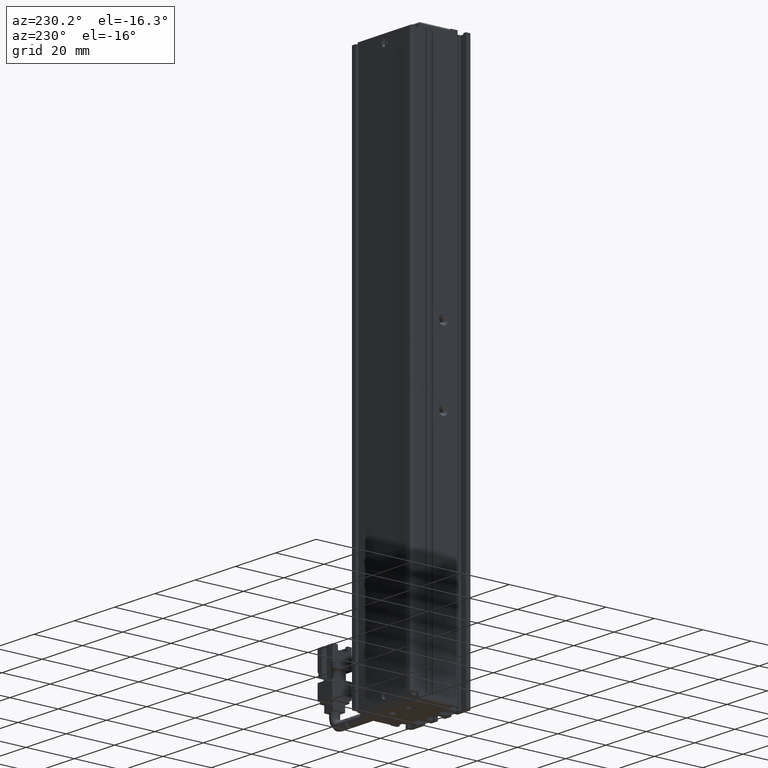
[diagram: clean part render]
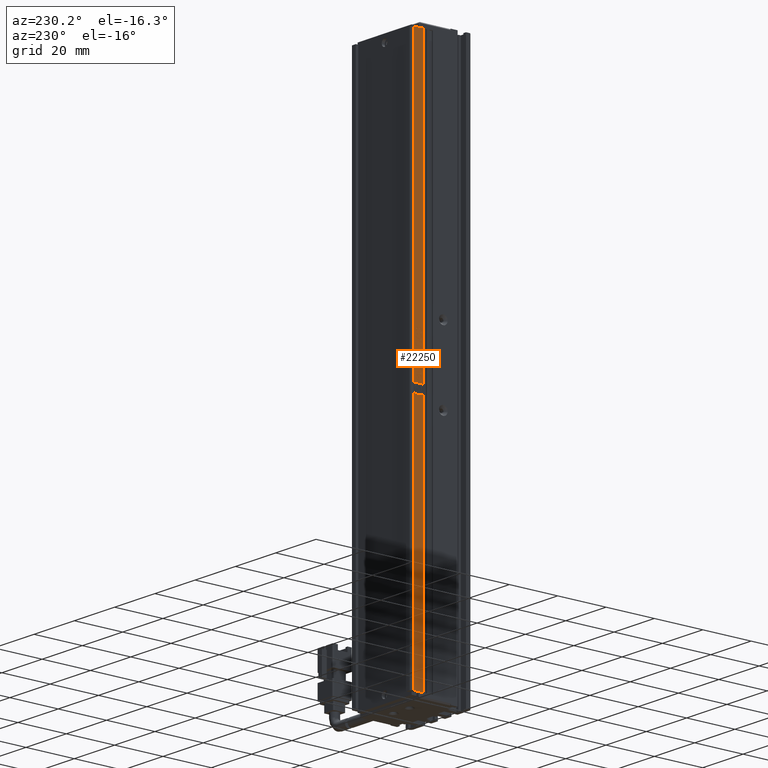
[diagram: same view with one face highlighted and labeled with its STEP entity id]
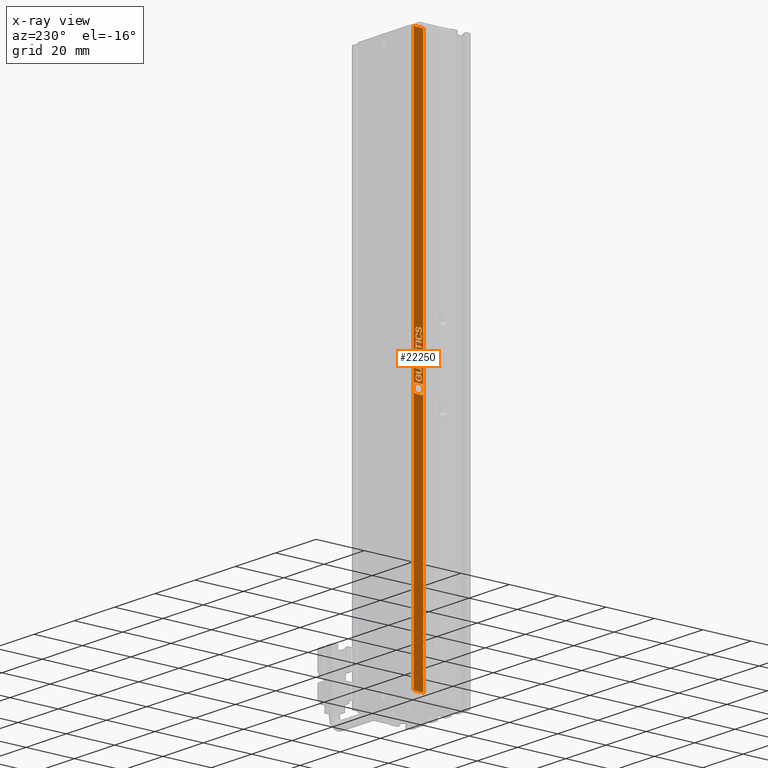
[diagram: x-ray of the same camera — body ghosted, the highlighted face saturated]
A machine part, auxiliary view. The second image highlights one B-rep face of the part: STEP entity #22250.
The next image is the same camera in x-ray: the body ghosted, the highlighted face saturated — about 0% of this face is hidden behind the body in this view.
In plain terms, the highlighted planar face has unit normal (-1, 0, 0).
Its self-contained STEP definition (entity closure, byte-faithful):
#99 = LINE ( 'NONE', #29737, #19147 ) ;
#109 = EDGE_CURVE ( 'NONE', #35213, #42903, #49120, .T. ) ;
#143 = CARTESIAN_POINT ( 'NONE',  ( 25.92537974683541800, 32.05925726625967800, -120.5468225797484100 ) ) ;
#424 = LINE ( 'NONE', #27965, #29620 ) ;
#510 = CARTESIAN_POINT ( 'NONE',  ( 25.92537974683541800, 32.46623401044572400, -117.6179421038156500 ) ) ;
#535 = CARTESIAN_POINT ( 'NONE',  ( 25.92537974683541800, 32.05925726625967800, -120.5468225797484100 ) ) ;
#582 = CARTESIAN_POINT ( 'NONE',  ( 25.92537974683541800, 31.33832703370152800, -118.6810167387533700 ) ) ;
#647 = CARTESIAN_POINT ( 'NONE',  ( 25.92537974683541800, 7.083797468354437600, -3.000000000000002700 ) ) ;
#685 = CARTESIAN_POINT ( 'NONE',  ( 25.92537974683541800, 31.29962368053766800, -117.9362898593590500 ) ) ;
#782 = DIRECTION ( 'NONE',  ( -0.0000000000000000000, -0.0000000000000000000, -1.000000000000000000 ) ) ;
#835 = CARTESIAN_POINT ( 'NONE',  ( 25.92537974683541800, 31.75693168486430600, -106.4883450243130900 ) ) ;
#894 = FACE_BOUND ( 'NONE', #32782, .T. ) ;
#900 = EDGE_CURVE ( 'NONE', #18497, #35213, #26139, .T. ) ;
#973 = CARTESIAN_POINT ( 'NONE',  ( 25.92537974683541800, 32.81507121974804200, -106.1702000811006200 ) ) ;
#982 = CARTESIAN_POINT ( 'NONE',  ( 25.92537974683541800, 31.33832703370152800, -107.0163331259898500 ) ) ;
#1001 = CARTESIAN_POINT ( 'NONE',  ( 25.92537974683541800, 32.61739680114337900, -116.5115332341562500 ) ) ;
#1055 = CARTESIAN_POINT ( 'NONE',  ( 25.92537974683541800, 31.47786191742245200, -106.6981881827772600 ) ) ;
#1063 = VERTEX_POINT ( 'NONE', #27613 ) ;
#1093 = CARTESIAN_POINT ( 'NONE',  ( 25.92537974683541800, 33.91972238253872300, -115.3508382639021900 ) ) ;
#1133 = CARTESIAN_POINT ( 'NONE',  ( 25.92537974683541800, 31.49914174289853000, -122.8808510603492400 ) ) ;
#1137 = B_SPLINE_CURVE_WITH_KNOTS ( 'NONE', 3,
 ( #47032, #46863, #1410, #28085 ),
 .UNSPECIFIED., .F., .F.,
 ( 4, 4 ),
 ( 2.000000000000000000, 3.000000000000000000 ),
 .UNSPECIFIED. ) ;
#1229 = VECTOR ( 'NONE', #20964, 1000.000000000000000 ) ;
#1261 = CARTESIAN_POINT ( 'NONE',  ( 25.92537974683541800, 32.61739680114337900, -116.5115332341562500 ) ) ;
#1330 = ORIENTED_EDGE ( 'NONE', *, *, #11426, .F. ) ;
#1356 = CARTESIAN_POINT ( 'NONE',  ( 25.92537974683541800, 33.88483866160850500, -118.1386289615765200 ) ) ;
#1410 = CARTESIAN_POINT ( 'NONE',  ( 25.92537974683541800, 33.53201280979671800, -121.5268117630908200 ) ) ;
#1442 = CARTESIAN_POINT ( 'NONE',  ( 25.92537974683541800, 33.87321075463176400, -114.6277446998134600 ) ) ;
#1504 = CARTESIAN_POINT ( 'NONE',  ( 25.92537974683541800, 34.54780534158434300, -125.9294874010641900 ) ) ;
#1583 = LINE ( 'NONE', #11373, #40920 ) ;
#1628 = ORIENTED_EDGE ( 'NONE', *, *, #29644, .F. ) ;
#1701 = EDGE_CURVE ( 'NONE', #11308, #40555, #29962, .T. ) ;
#1711 = CARTESIAN_POINT ( 'NONE',  ( 25.92537974683541800, 33.45460610346896900, -116.4754326392401500 ) ) ;
#1741 = CARTESIAN_POINT ( 'NONE',  ( 25.92537974683541800, 30.69594479660386800, -225.0000000000000000 ) ) ;
#1769 = EDGE_CURVE ( 'NONE', #13129, #3547, #34042, .T. ) ;
#1934 = VERTEX_POINT ( 'NONE', #36698 ) ;
#1989 = CARTESIAN_POINT ( 'NONE',  ( 25.92537974683541800, 31.67553633602708600, -117.5818415088993300 ) ) ;
#2043 = CARTESIAN_POINT ( 'NONE',  ( 25.92537974683541800, 32.04762935928291500, -104.7527446998133800 ) ) ;
#2082 = VERTEX_POINT ( 'NONE', #21386 ) ;
#2090 = FACE_BOUND ( 'NONE', #38199, .T. ) ;
#2142 = EDGE_CURVE ( 'NONE', #6294, #43182, #16723, .T. ) ;
#2161 = B_SPLINE_CURVE_WITH_KNOTS ( 'NONE', 3,
 ( #33239, #14414, #29710, #6934 ),
 .UNSPECIFIED., .F., .F.,
 ( 4, 4 ),
 ( 1.000000000000000000, 2.000000000000000000 ),
 .UNSPECIFIED. ) ;
#2182 = CARTESIAN_POINT ( 'NONE',  ( 25.92537974683541800, 31.79181540579453700, -104.7600459437288400 ) ) ;
#2330 = CARTESIAN_POINT ( 'NONE',  ( 25.92537974683541800, 31.33832703370152800, -107.4429150621714700 ) ) ;
#2334 = VERTEX_POINT ( 'NONE', #3101 ) ;
#2426 = ORIENTED_EDGE ( 'NONE', *, *, #4310, .F. ) ;
#2444 = VECTOR ( 'NONE', #46061, 1000.000000000000000 ) ;
#2460 = EDGE_CURVE ( 'NONE', #23783, #11308, #33811, .T. ) ;
#2476 = VERTEX_POINT ( 'NONE', #29096 ) ;
#2495 = VECTOR ( 'NONE', #782, 1000.000000000000000 ) ;
#2508 = VERTEX_POINT ( 'NONE', #19077 ) ;
#2551 = VECTOR ( 'NONE', #31379, 1000.000000000000000 ) ;
#2561 = CARTESIAN_POINT ( 'NONE',  ( 25.92537974683541800, 33.88865829384214800, -116.0884667117117500 ) ) ;
#2613 = CARTESIAN_POINT ( 'NONE',  ( 25.92537974683541800, 33.09414098718989500, -106.4340589237182100 ) ) ;
#2687 = CARTESIAN_POINT ( 'NONE',  ( 25.92537974683541800, 33.88483866160850500, -117.6179421038156500 ) ) ;
#2700 = CARTESIAN_POINT ( 'NONE',  ( 25.92537974683541800, 33.07088517323640500, -112.0097755272875900 ) ) ;
#2725 = CARTESIAN_POINT ( 'NONE',  ( 25.92537974683541800, 31.31507121974803800, -119.3969442671470300 ) ) ;
#2739 = CARTESIAN_POINT ( 'NONE',  ( 25.92537974683541800, 33.88483866160850500, -109.6992698485425600 ) ) ;
#2793 = ORIENTED_EDGE ( 'NONE', *, *, #39630, .F. ) ;
#2822 = LINE ( 'NONE', #26228, #42144 ) ;
#2832 = CARTESIAN_POINT ( 'NONE',  ( 25.92537974683541800, 32.24530377788757800, -106.1737830989479200 ) ) ;
#2893 = ORIENTED_EDGE ( 'NONE', *, *, #6434, .F. ) ;
#2937 = CARTESIAN_POINT ( 'NONE',  ( 25.92537974683541800, 31.66390842905035500, -105.2517306381584600 ) ) ;
#2947 = VERTEX_POINT ( 'NONE', #31480 ) ;
#2966 = LINE ( 'NONE', #40541, #23212 ) ;
#3010 = EDGE_CURVE ( 'NONE', #12664, #21557, #47147, .T. ) ;
#3018 = CARTESIAN_POINT ( 'NONE',  ( 25.92537974683541800, 33.87321075463176400, -108.1734450783963800 ) ) ;
#3101 = CARTESIAN_POINT ( 'NONE',  ( 25.92537974683541800, 32.25693168486430600, -112.8559085721768200 ) ) ;
#3161 = CARTESIAN_POINT ( 'NONE',  ( 25.92537974683541800, 31.86540247988864400, -105.9062736343726100 ) ) ;
#3173 = B_SPLINE_CURVE_WITH_KNOTS ( 'NONE', 3,
 ( #47806, #46353, #46491, #7426 ),
 .UNSPECIFIED., .F., .F.,
 ( 4, 4 ),
 ( 5.000000000000000000, 6.000000000000000000 ),
 .UNSPECIFIED. ) ;
#3191 = EDGE_CURVE ( 'NONE', #7060, #4262, #22682, .T. ) ;
#3302 = EDGE_CURVE ( 'NONE', #43182, #41361, #31704, .T. ) ;
#3327 = CARTESIAN_POINT ( 'NONE',  ( 25.92537974683541800, 31.67154769351764200, -105.5988101405923100 ) ) ;
#3430 = ORIENTED_EDGE ( 'NONE', *, *, #5533, .F. ) ;
#3466 = ORIENTED_EDGE ( 'NONE', *, *, #32712, .F. ) ;
#3502 = VERTEX_POINT ( 'NONE', #8873 ) ;
#3547 = VERTEX_POINT ( 'NONE', #8773 ) ;
#3628 = EDGE_CURVE ( 'NONE', #47566, #5901, #41451, .T. ) ;
#3630 = EDGE_CURVE ( 'NONE', #48990, #29338, #22285, .T. ) ;
#3670 = LINE ( 'NONE', #34975, #12583 ) ;
#3723 = LINE ( 'NONE', #6712, #2495 ) ;
#3736 = VERTEX_POINT ( 'NONE', #40233 ) ;
#3740 = CARTESIAN_POINT ( 'NONE',  ( 25.92537974683541800, 33.53600145230615900, -110.9901027311816500 ) ) ;
#3843 = ORIENTED_EDGE ( 'NONE', *, *, #24347, .F. ) ;
#3952 = ORIENTED_EDGE ( 'NONE', *, *, #33484, .F. ) ;
#3956 = ORIENTED_EDGE ( 'NONE', *, *, #37878, .F. ) ;
#4005 = CARTESIAN_POINT ( 'NONE',  ( 25.92537974683541800, 33.53600145230615900, -110.9901027311816500 ) ) ;
#4170 = CARTESIAN_POINT ( 'NONE',  ( 25.92537974683541800, 32.82669912672479700, -121.2410491887261900 ) ) ;
#4262 = VERTEX_POINT ( 'NONE', #6635 ) ;
#4310 = EDGE_CURVE ( 'NONE', #6686, #7248, #41123, .T. ) ;
#4337 = DIRECTION ( 'NONE',  ( -0.0000000000000000000, -0.0000000000000000000, -1.000000000000000000 ) ) ;
#4354 = VECTOR ( 'NONE', #46954, 1000.000000000000000 ) ;
#4389 = CARTESIAN_POINT ( 'NONE',  ( 25.92537974683541800, 31.66772806128401300, -120.8035829907814800 ) ) ;
#4458 = CARTESIAN_POINT ( 'NONE',  ( 25.92537974683541800, 32.82669912672479700, -120.0586532990563500 ) ) ;
#4492 = DIRECTION ( 'NONE',  ( 0.0000000000000000000, 0.0000000000000000000, 1.000000000000000000 ) ) ;
#4624 = EDGE_CURVE ( 'NONE', #19049, #14340, #3173, .T. ) ;
#4677 = ORIENTED_EDGE ( 'NONE', *, *, #38179, .F. ) ;
#4684 = B_SPLINE_CURVE_WITH_KNOTS ( 'NONE', 3,
 ( #7262, #26203, #11050, #37736 ),
 .UNSPECIFIED., .F., .F.,
 ( 4, 4 ),
 ( 10.00000000000000000, 11.00000000000000000 ),
 .UNSPECIFIED. ) ;
#4766 = CARTESIAN_POINT ( 'NONE',  ( 25.92537974683541800, 32.60576889416662300, -108.0504055975959800 ) ) ;
#4774 = EDGE_LOOP ( 'NONE', ( #49033, #2793, #29759, #41590 ) ) ;
#4836 = VECTOR ( 'NONE', #29309, 1000.000000000000000 ) ;
#4858 = CARTESIAN_POINT ( 'NONE',  ( 25.92537974683541800, 32.43135028951547800, -105.1974445375635800 ) ) ;
#4912 = VECTOR ( 'NONE', #28016, 1000.000000000000000 ) ;
#5094 = CARTESIAN_POINT ( 'NONE',  ( 25.92537974683541800, 32.37703038686538500, -104.9010005137667700 ) ) ;
#5131 = CARTESIAN_POINT ( 'NONE',  ( 25.92537974683541800, 31.81108257723857900, -116.4754326392401500 ) ) ;
#5173 = EDGE_CURVE ( 'NONE', #18687, #44425, #29636, .T. ) ;
#5326 = VERTEX_POINT ( 'NONE', #16074 ) ;
#5388 = CARTESIAN_POINT ( 'NONE',  ( 25.92537974683541800, 34.18074012043319200, -126.6092762997849700 ) ) ;
#5490 = CARTESIAN_POINT ( 'NONE',  ( 25.92537974683541800, 32.87321075463174900, -105.1758112222578900 ) ) ;
#5519 = EDGE_LOOP ( 'NONE', ( #24963, #40518, #26123, #9399, #2426, #39172, #26831, #9194 ) ) ;
#5528 = VERTEX_POINT ( 'NONE', #9645 ) ;
#5533 = EDGE_CURVE ( 'NONE', #21557, #20994, #1583, .T. ) ;
#5541 = CARTESIAN_POINT ( 'NONE',  ( 25.92537974683541800, 32.74131513537810200, -104.5395213358329400 ) ) ;
#5605 = CARTESIAN_POINT ( 'NONE',  ( 25.92537974683541800, 32.08251308021316100, -104.2211735802894300 ) ) ;
#5654 = CARTESIAN_POINT ( 'NONE',  ( 25.92537974683541800, 32.47786191742245200, -104.2211735802894300 ) ) ;
#5763 = CARTESIAN_POINT ( 'NONE',  ( 25.92537974683541800, 33.67553633602711500, -120.2286776365360500 ) ) ;
#5823 = EDGE_CURVE ( 'NONE', #43941, #7060, #34340, .T. ) ;
#5901 = VERTEX_POINT ( 'NONE', #37994 ) ;
#6041 = B_SPLINE_CURVE_WITH_KNOTS ( 'NONE', 3,
 ( #21497, #25196, #14046, #40680 ),
 .UNSPECIFIED., .F., .F.,
 ( 4, 4 ),
 ( 8.000000000000000000, 9.000000000000000000 ),
 .UNSPECIFIED. ) ;
#6045 = VERTEX_POINT ( 'NONE', #28343 ) ;
#6101 = CARTESIAN_POINT ( 'NONE',  ( 25.92537974683541800, 30.81938000796076300, -123.5605788019203400 ) ) ;
#6137 = ORIENTED_EDGE ( 'NONE', *, *, #39604, .F. ) ;
#6183 = VECTOR ( 'NONE', #40654, 1000.000000000000000 ) ;
#6196 = CARTESIAN_POINT ( 'NONE',  ( 25.92537974683541800, 32.08251308021316100, -104.2211735802894300 ) ) ;
#6290 = CARTESIAN_POINT ( 'NONE',  ( 25.92537974683541800, 31.87321075463174600, -118.1242292860763000 ) ) ;
#6294 = VERTEX_POINT ( 'NONE', #4170 ) ;
#6371 = B_SPLINE_CURVE_WITH_KNOTS ( 'NONE', 3,
 ( #25173, #2182, #10029, #36672 ),
 .UNSPECIFIED., .F., .F.,
 ( 4, 4 ),
 ( 2.000000000000000000, 3.000000000000000000 ),
 .UNSPECIFIED. ) ;
#6434 = EDGE_CURVE ( 'NONE', #5326, #12664, #23379, .T. ) ;
#6635 = CARTESIAN_POINT ( 'NONE',  ( 25.92537974683541800, 31.38483866160850200, -109.3955245808300700 ) ) ;
#6686 = VERTEX_POINT ( 'NONE', #19989 ) ;
#6693 = ORIENTED_EDGE ( 'NONE', *, *, #5173, .F. ) ;
#6708 = CARTESIAN_POINT ( 'NONE',  ( 25.92537974683541800, 31.33832703370152800, -105.1758112222578900 ) ) ;
#6712 = CARTESIAN_POINT ( 'NONE',  ( 25.92537974683541800, 34.69594479660387500, -3.000000000000002700 ) ) ;
#6720 = B_SPLINE_CURVE_WITH_KNOTS ( 'NONE', 3,
 ( #15359, #19178, #45805, #22989 ),
 .UNSPECIFIED., .F., .F.,
 ( 4, 4 ),
 ( 1.000000000000000000, 2.000000000000000000 ),
 .UNSPECIFIED. ) ;
#6798 = CARTESIAN_POINT ( 'NONE',  ( 25.92537974683541800, 31.67553633602708600, -118.6702000811005700 ) ) ;
#6934 = CARTESIAN_POINT ( 'NONE',  ( 25.92537974683541800, 33.18716424300384200, -120.6118577338860000 ) ) ;
#6979 = VECTOR ( 'NONE', #41623, 1000.000000000000000 ) ;
#7030 = CARTESIAN_POINT ( 'NONE',  ( 25.92537974683541800, 32.62902470812014100, -121.7617360464876000 ) ) ;
#7060 = VERTEX_POINT ( 'NONE', #39127 ) ;
#7080 = VECTOR ( 'NONE', #24174, 1000.000000000000000 ) ;
#7174 = CARTESIAN_POINT ( 'NONE',  ( 25.92537974683541800, 33.91972238253872300, -105.2408463763954700 ) ) ;
#7248 = VERTEX_POINT ( 'NONE', #12882 ) ;
#7262 = CARTESIAN_POINT ( 'NONE',  ( 25.92537974683541800, 32.87321075463174900, -105.1758112222578900 ) ) ;
#7332 = CARTESIAN_POINT ( 'NONE',  ( 25.92537974683541800, 33.90410583305251900, -104.6913601676338600 ) ) ;
#7373 = DIRECTION ( 'NONE',  ( -0.0000000000000000000, -0.0000000000000000000, -1.000000000000000000 ) ) ;
#7426 = CARTESIAN_POINT ( 'NONE',  ( 25.92537974683541800, 33.88483866160850500, -112.8559085721768200 ) ) ;
#7685 = B_SPLINE_CURVE_WITH_KNOTS ( 'NONE', 3,
 ( #13888, #36847, #17879, #44495 ),
 .UNSPECIFIED., .F., .F.,
 ( 4, 4 ),
 ( 2.000000000000000000, 3.000000000000000000 ),
 .UNSPECIFIED. ) ;
#7731 = VECTOR ( 'NONE', #31807, 1000.000000000000000 ) ;
#7742 = ORIENTED_EDGE ( 'NONE', *, *, #13697, .F. ) ;
#7748 = VERTEX_POINT ( 'NONE', #41978 ) ;
#7801 = ORIENTED_EDGE ( 'NONE', *, *, #17405, .F. ) ;
#7941 = VERTEX_POINT ( 'NONE', #37713 ) ;
#7964 = CARTESIAN_POINT ( 'NONE',  ( 25.92537974683541800, 33.14065261509686900, -104.2862763385370900 ) ) ;
#8011 = CARTESIAN_POINT ( 'NONE',  ( 25.92537974683541800, 33.07088517323640500, -112.0097755272875900 ) ) ;
#8013 = B_SPLINE_CURVE_WITH_KNOTS ( 'NONE', 3,
 ( #40682, #14050, #48332, #25511 ),
 .UNSPECIFIED., .F., .F.,
 ( 4, 4 ),
 ( 11.00000000000000000, 12.00000000000000000 ),
 .UNSPECIFIED. ) ;
#8027 = VECTOR ( 'NONE', #19351, 1000.000000000000000 ) ;
#8090 = CARTESIAN_POINT ( 'NONE',  ( 25.92537974683541800, 33.53600145230615900, -110.4694158734209000 ) ) ;
#8487 = EDGE_CURVE ( 'NONE', #25553, #5326, #2822, .T. ) ;
#8616 = CARTESIAN_POINT ( 'NONE',  ( 25.92537974683541800, 33.18716424300384200, -120.0695375608194600 ) ) ;
#8651 = CARTESIAN_POINT ( 'NONE',  ( 25.92537974683541800, 33.64447224733051200, -104.3730800162006600 ) ) ;
#8773 = CARTESIAN_POINT ( 'NONE',  ( 25.92537974683541800, 32.25693168486430600, -113.3548945105218900 ) ) ;
#8841 = DIRECTION ( 'NONE',  ( -0.0000000000000000000, -1.000000000000000000, -0.0000000000000000000 ) ) ;
#8873 = CARTESIAN_POINT ( 'NONE',  ( 25.92537974683541800, 32.23367587091082200, -106.4883450243130900 ) ) ;
#8896 = EDGE_CURVE ( 'NONE', #20393, #35918, #46198, .T. ) ;
#8930 = CARTESIAN_POINT ( 'NONE',  ( 25.92537974683541800, 32.24912341012119300, -104.7527446998133800 ) ) ;
#8972 = CARTESIAN_POINT ( 'NONE',  ( 25.92537974683541800, 31.33832703370152800, -115.3508382639021900 ) ) ;
#9004 = VERTEX_POINT ( 'NONE', #15234 ) ;
#9077 = CARTESIAN_POINT ( 'NONE',  ( 25.92537974683541800, 33.09414098718989500, -106.4340589237182100 ) ) ;
#9141 = EDGE_CURVE ( 'NONE', #2082, #19943, #19971, .T. ) ;
#9194 = ORIENTED_EDGE ( 'NONE', *, *, #35897, .F. ) ;
#9209 = CARTESIAN_POINT ( 'NONE',  ( 25.92537974683541800, 32.62902470812014100, -108.5819091130098600 ) ) ;
#9228 = CARTESIAN_POINT ( 'NONE',  ( 25.92537974683541800, 31.67553633602708600, -107.3235938074392200 ) ) ;
#9338 = EDGE_CURVE ( 'NONE', #40555, #29236, #20976, .T. ) ;
#9351 = LINE ( 'NONE', #41461, #18277 ) ;
#9399 = ORIENTED_EDGE ( 'NONE', *, *, #22789, .F. ) ;
#9522 = VERTEX_POINT ( 'NONE', #2043 ) ;
#9532 = B_SPLINE_CURVE_WITH_KNOTS ( 'NONE', 3,
 ( #43785, #17137, #9676, #36311 ),
 .UNSPECIFIED., .F., .F.,
 ( 4, 4 ),
 ( 4.000000000000000000, 5.000000000000000000 ),
 .UNSPECIFIED. ) ;
#9558 = ORIENTED_EDGE ( 'NONE', *, *, #3191, .F. ) ;
#9645 = CARTESIAN_POINT ( 'NONE',  ( 25.92537974683541800, 33.88483866160850500, -118.1386289615765200 ) ) ;
#9676 = CARTESIAN_POINT ( 'NONE',  ( 25.92537974683541800, 31.65991978654089700, -107.0127501081423100 ) ) ;
#9677 = EDGE_CURVE ( 'NONE', #14340, #7748, #17862, .T. ) ;
#9910 = DIRECTION ( 'NONE',  ( -0.0000000000000000000, -0.0000000000000000000, 1.000000000000000000 ) ) ;
#9923 = CARTESIAN_POINT ( 'NONE',  ( 25.92537974683541800, 33.63666397258739900, -106.5498647647133500 ) ) ;
#10029 = CARTESIAN_POINT ( 'NONE',  ( 25.92537974683541800, 31.66390842905035500, -104.9262844510302000 ) ) ;
#10055 = ORIENTED_EDGE ( 'NONE', *, *, #37136, .T. ) ;
#10061 = DIRECTION ( 'NONE',  ( -0.0000000000000000000, -0.0000000000000000000, 1.000000000000000000 ) ) ;
#10071 = CARTESIAN_POINT ( 'NONE',  ( 25.92537974683541800, 33.91972238253872300, -121.1217279339940700 ) ) ;
#10238 = ORIENTED_EDGE ( 'NONE', *, *, #15036, .T. ) ;
#10553 = EDGE_CURVE ( 'NONE', #6045, #11364, #26024, .T. ) ;
#10603 = VERTEX_POINT ( 'NONE', #9228 ) ;
#10641 = CARTESIAN_POINT ( 'NONE',  ( 25.92537974683541800, 34.69594479660387500, -5.000000000000004400 ) ) ;
#10686 = CARTESIAN_POINT ( 'NONE',  ( 25.92537974683541800, 33.91972238253872300, -107.4646159815874600 ) ) ;
#10692 = LINE ( 'NONE', #42047, #11860 ) ;
#10698 = CARTESIAN_POINT ( 'NONE',  ( 25.92537974683541800, 32.61739680114337900, -114.1901432936479100 ) ) ;
#10739 = EDGE_LOOP ( 'NONE', ( #44508, #38065, #39537, #3430, #44102, #2893, #39917, #21933 ) ) ;
#10766 = CARTESIAN_POINT ( 'NONE',  ( 25.92537974683541800, 31.89646656858523200, -120.0586532990563500 ) ) ;
#10778 = CARTESIAN_POINT ( 'NONE',  ( 25.92537974683541800, 31.38483866160850200, -113.3548945105218900 ) ) ;
#10828 = CARTESIAN_POINT ( 'NONE',  ( 25.92537974683541800, 31.52437354532944300, -120.2033936992726400 ) ) ;
#10877 = CARTESIAN_POINT ( 'NONE',  ( 25.92537974683541800, 31.38483866160850200, -110.9901027311816500 ) ) ;
#10967 = ORIENTED_EDGE ( 'NONE', *, *, #47877, .F. ) ;
#11036 = FACE_BOUND ( 'NONE', #23233, .T. ) ;
#11050 = CARTESIAN_POINT ( 'NONE',  ( 25.92537974683541800, 33.03982108453980300, -105.6025959707706500 ) ) ;
#11067 = CARTESIAN_POINT ( 'NONE',  ( 25.92537974683541800, 31.33832703370152800, -121.0891427528150600 ) ) ;
#11112 = DIRECTION ( 'NONE',  ( -0.0000000000000000000, -0.0000000000000000000, 1.000000000000000000 ) ) ;
#11258 = VERTEX_POINT ( 'NONE', #38598 ) ;
#11259 = ORIENTED_EDGE ( 'NONE', *, *, #49078, .F. ) ;
#11276 = CARTESIAN_POINT ( 'NONE',  ( 25.92537974683541800, 31.38483866160850200, -108.8856543807221200 ) ) ;
#11308 = VERTEX_POINT ( 'NONE', #33752 ) ;
#11364 = VERTEX_POINT ( 'NONE', #31507 ) ;
#11373 = CARTESIAN_POINT ( 'NONE',  ( 25.92537974683541800, 31.38483866160850200, -110.4694158734209000 ) ) ;
#11426 = EDGE_CURVE ( 'NONE', #23342, #23294, #47846, .T. ) ;
#11567 = CARTESIAN_POINT ( 'NONE',  ( 25.92537974683541800, 31.33832703370152800, -120.5468225797484100 ) ) ;
#11805 = CARTESIAN_POINT ( 'NONE',  ( 25.92537974683541800, 32.62902470812014100, -121.7617360464876000 ) ) ;
#11860 = VECTOR ( 'NONE', #26734, 1000.000000000000000 ) ;
#11970 = CARTESIAN_POINT ( 'NONE',  ( 25.92537974683541800, 32.03201280979669700, -121.7400351270715900 ) ) ;
#12220 = FACE_BOUND ( 'NONE', #28715, .T. ) ;
#12318 = B_SPLINE_CURVE_WITH_KNOTS ( 'NONE', 3,
 ( #39010, #35190, #46613, #23808 ),
 .UNSPECIFIED., .F., .F.,
 ( 4, 4 ),
 ( 5.000000000000000000, 6.000000000000000000 ),
 .UNSPECIFIED. ) ;
#12422 = EDGE_CURVE ( 'NONE', #20994, #20393, #424, .T. ) ;
#12490 = CARTESIAN_POINT ( 'NONE',  ( 25.92537974683541800, 31.67553633602708600, -107.3235938074392200 ) ) ;
#12554 = CARTESIAN_POINT ( 'NONE',  ( 25.92537974683541800, 32.43135028951547800, -105.1974445375635800 ) ) ;
#12556 = EDGE_CURVE ( 'NONE', #7941, #24600, #46783, .T. ) ;
#12583 = VECTOR ( 'NONE', #15940, 1000.000000000000000 ) ;
#12620 = LINE ( 'NONE', #30046, #30487 ) ;
#12642 = CARTESIAN_POINT ( 'NONE',  ( 25.92537974683541800, 31.71423968919098600, -121.5122092752599100 ) ) ;
#12664 = VERTEX_POINT ( 'NONE', #4005 ) ;
#12681 = LINE ( 'NONE', #31488, #2551 ) ;
#12782 = CARTESIAN_POINT ( 'NONE',  ( 25.92537974683541800, 31.89646656858523200, -120.0586532990563500 ) ) ;
#12799 = CARTESIAN_POINT ( 'NONE',  ( 25.92537974683541800, 31.67553633602708600, -121.0783260951622800 ) ) ;
#12882 = CARTESIAN_POINT ( 'NONE',  ( 25.92537974683541800, 34.54780534158434300, -123.5605788019203400 ) ) ;
#12964 = DIRECTION ( 'NONE',  ( -0.0000000000000000000, -1.000000000000000000, -0.0000000000000000000 ) ) ;
#13011 = EDGE_CURVE ( 'NONE', #14290, #13129, #48009, .T. ) ;
#13026 = LINE ( 'NONE', #15244, #23144 ) ;
#13091 = EDGE_CURVE ( 'NONE', #38212, #34702, #40146, .T. ) ;
#13117 = DIRECTION ( 'NONE',  ( -0.0000000000000000000, -0.0000000000000000000, 1.000000000000000000 ) ) ;
#13129 = VERTEX_POINT ( 'NONE', #49263 ) ;
#13133 = CARTESIAN_POINT ( 'NONE',  ( 25.92537974683541800, 31.49914174289853000, -126.6092762997849700 ) ) ;
#13162 = CARTESIAN_POINT ( 'NONE',  ( 25.92537974683541800, 31.33832703370152800, -115.3508382639021900 ) ) ;
#13172 = ORIENTED_EDGE ( 'NONE', *, *, #46251, .F. ) ;
#13626 = ORIENTED_EDGE ( 'NONE', *, *, #3302, .F. ) ;
#13697 = EDGE_CURVE ( 'NONE', #35163, #23783, #24042, .T. ) ;
#13732 = ORIENTED_EDGE ( 'NONE', *, *, #40149, .F. ) ;
#13751 = ORIENTED_EDGE ( 'NONE', *, *, #12556, .F. ) ;
#13826 = ORIENTED_EDGE ( 'NONE', *, *, #15947, .F. ) ;
#13863 = EDGE_CURVE ( 'NONE', #23294, #31040, #12681, .T. ) ;
#13888 = CARTESIAN_POINT ( 'NONE',  ( 25.92537974683541800, 32.60576889416662300, -108.0504055975959800 ) ) ;
#13910 = DIRECTION ( 'NONE',  ( -0.0000000000000000000, -0.0000000000000000000, 1.000000000000000000 ) ) ;
#13926 = CARTESIAN_POINT ( 'NONE',  ( 25.92537974683541800, 33.23367587091082200, -105.5879934829394000 ) ) ;
#14042 = EDGE_CURVE ( 'NONE', #31696, #43941, #44215, .T. ) ;
#14046 = CARTESIAN_POINT ( 'NONE',  ( 25.92537974683541800, 33.41191410779563100, -104.8648999188506700 ) ) ;
#14050 = CARTESIAN_POINT ( 'NONE',  ( 25.92537974683541800, 31.80344331277128200, -122.2536235532477100 ) ) ;
#14199 = ORIENTED_EDGE ( 'NONE', *, *, #9338, .F. ) ;
#14290 = VERTEX_POINT ( 'NONE', #22177 ) ;
#14340 = VERTEX_POINT ( 'NONE', #20278 ) ;
#14354 = B_SPLINE_CURVE_WITH_KNOTS ( 'NONE', 3,
 ( #19968, #973, #27659, #4858 ),
 .UNSPECIFIED., .F., .F.,
 ( 4, 4 ),
 ( 4.000000000000000000, 5.000000000000000000 ),
 .UNSPECIFIED. ) ;
#14384 = CARTESIAN_POINT ( 'NONE',  ( 25.92537974683541800, 30.81938000796076300, -126.3782109981315600 ) ) ;
#14414 = CARTESIAN_POINT ( 'NONE',  ( 25.92537974683541800, 33.57088517323640500, -120.8613845051136900 ) ) ;
#14574 = CARTESIAN_POINT ( 'NONE',  ( 25.92537974683541800, 32.31507121974804200, -119.2017035965143400 ) ) ;
#14661 = B_SPLINE_CURVE_WITH_KNOTS ( 'NONE', 3,
 ( #1261, #5131, #31766, #8972 ),
 .UNSPECIFIED., .F., .F.,
 ( 4, 4 ),
 ( 1.000000000000000000, 2.000000000000000000 ),
 .UNSPECIFIED. ) ;
#14722 = ORIENTED_EDGE ( 'NONE', *, *, #30056, .F. ) ;
#15015 = B_SPLINE_CURVE_WITH_KNOTS ( 'NONE', 3,
 ( #13926, #40540, #17742, #44377 ),
 .UNSPECIFIED., .F., .F.,
 ( 4, 4 ),
 ( 9.000000000000000000, 10.00000000000000000 ),
 .UNSPECIFIED. ) ;
#15019 = ORIENTED_EDGE ( 'NONE', *, *, #21690, .F. ) ;
#15036 = EDGE_CURVE ( 'NONE', #44230, #2508, #3723, .T. ) ;
#15080 = ORIENTED_EDGE ( 'NONE', *, *, #2142, .F. ) ;
#15153 = EDGE_CURVE ( 'NONE', #32797, #35163, #35034, .T. ) ;
#15234 = CARTESIAN_POINT ( 'NONE',  ( 25.92537974683541800, 33.23367587091082200, -105.5879934829394000 ) ) ;
#15244 = CARTESIAN_POINT ( 'NONE',  ( 25.92537974683541800, 32.05925726625967800, -120.5468225797484100 ) ) ;
#15295 = CARTESIAN_POINT ( 'NONE',  ( 25.92537974683541800, 31.58650172272260500, -104.2140751487046800 ) ) ;
#15331 = B_SPLINE_CURVE_WITH_KNOTS ( 'NONE', 3,
 ( #15495, #38349, #30791, #8011 ),
 .UNSPECIFIED., .F., .F.,
 ( 4, 4 ),
 ( 6.000000000000000000, 7.000000000000000000 ),
 .UNSPECIFIED. ) ;
#15359 = CARTESIAN_POINT ( 'NONE',  ( 25.92537974683541800, 33.55925726625965000, -107.4320984045189000 ) ) ;
#15416 = ORIENTED_EDGE ( 'NONE', *, *, #3630, .F. ) ;
#15482 = CARTESIAN_POINT ( 'NONE',  ( 25.92537974683541800, 33.86805040188582400, -122.8808510603492400 ) ) ;
#15495 = CARTESIAN_POINT ( 'NONE',  ( 25.92537974683541800, 32.25693168486430600, -112.8559085721768200 ) ) ;
#15560 = CARTESIAN_POINT ( 'NONE',  ( 25.92537974683541800, 33.18716424300384200, -120.0695375608194600 ) ) ;
#15629 = CARTESIAN_POINT ( 'NONE',  ( 25.92537974683541800, 35.69594479660387500, -5.000000000000004400 ) ) ;
#15872 = CARTESIAN_POINT ( 'NONE',  ( 25.92537974683541800, 33.09414098718989500, -106.9439291238263900 ) ) ;
#15940 = DIRECTION ( 'NONE',  ( -0.0000000000000000000, -0.0000000000000000000, -1.000000000000000000 ) ) ;
#15947 = EDGE_CURVE ( 'NONE', #49113, #7941, #32832, .T. ) ;
#15958 = VERTEX_POINT ( 'NONE', #15872 ) ;
#16074 = CARTESIAN_POINT ( 'NONE',  ( 25.92537974683541800, 33.53600145230615900, -111.7602487560598900 ) ) ;
#16338 = CARTESIAN_POINT ( 'NONE',  ( 25.92537974683541800, 32.01656527058632700, -108.0359383179855800 ) ) ;
#16381 = EDGE_CURVE ( 'NONE', #49361, #2508, #9351, .T. ) ;
#16396 = EDGE_CURVE ( 'NONE', #5528, #44838, #37368, .T. ) ;
#16417 = CARTESIAN_POINT ( 'NONE',  ( 25.92537974683541800, 32.46623401044572400, -117.6179421038156500 ) ) ;
#16583 = EDGE_CURVE ( 'NONE', #7748, #14290, #31307, .T. ) ;
#16603 = CARTESIAN_POINT ( 'NONE',  ( 25.92537974683541800, 33.53600145230615900, -109.6992698485425600 ) ) ;
#16648 = DIRECTION ( 'NONE',  ( -0.0000000000000000000, -0.0000000000000000000, 1.000000000000000000 ) ) ;
#16678 = EDGE_CURVE ( 'NONE', #19943, #46748, #27737, .T. ) ;
#16715 = VERTEX_POINT ( 'NONE', #24622 ) ;
#16723 = LINE ( 'NONE', #25245, #37008 ) ;
#16731 = CARTESIAN_POINT ( 'NONE',  ( 25.92537974683541800, 32.47786191742245200, -120.5468225797484100 ) ) ;
#16784 = VECTOR ( 'NONE', #27246, 1000.000000000000000 ) ;
#17137 = CARTESIAN_POINT ( 'NONE',  ( 25.92537974683541800, 31.84596629816881100, -106.7342887776932500 ) ) ;
#17143 = VERTEX_POINT ( 'NONE', #4766 ) ;
#17288 = EDGE_LOOP ( 'NONE', ( #28063, #30216, #10055, #10238 ) ) ;
#17405 = EDGE_CURVE ( 'NONE', #40085, #18687, #31474, .T. ) ;
#17487 = ORIENTED_EDGE ( 'NONE', *, *, #16583, .F. ) ;
#17497 = VECTOR ( 'NONE', #11112, 1000.000000000000000 ) ;
#17636 = CARTESIAN_POINT ( 'NONE',  ( 25.92537974683541800, 31.33832703370152800, -115.3508382639021900 ) ) ;
#17695 = ORIENTED_EDGE ( 'NONE', *, *, #41834, .F. ) ;
#17742 = CARTESIAN_POINT ( 'NONE',  ( 25.92537974683541800, 33.55925726625965000, -105.4759734721227300 ) ) ;
#17744 = CARTESIAN_POINT ( 'NONE',  ( 25.92537974683541800, 31.65991978654089700, -118.3013520551404100 ) ) ;
#17783 = ORIENTED_EDGE ( 'NONE', *, *, #13863, .F. ) ;
#17807 = ORIENTED_EDGE ( 'NONE', *, *, #36316, .F. ) ;
#17840 = B_SPLINE_CURVE_WITH_KNOTS ( 'NONE', 3,
 ( #9209, #35862, #20643, #47281 ),
 .UNSPECIFIED., .F., .F.,
 ( 4, 4 ),
 ( 7.000000000000000000, 8.000000000000000000 ),
 .UNSPECIFIED. ) ;
#17862 = LINE ( 'NONE', #31516, #7731 ) ;
#17879 = CARTESIAN_POINT ( 'NONE',  ( 25.92537974683541800, 33.54364071677344600, -107.8371822336155500 ) ) ;
#18277 = VECTOR ( 'NONE', #48982, 1000.000000000000000 ) ;
#18346 = CARTESIAN_POINT ( 'NONE',  ( 25.92537974683541800, 32.62902470812014100, -108.5819091130098600 ) ) ;
#18466 = ORIENTED_EDGE ( 'NONE', *, *, #1701, .F. ) ;
#18497 = VERTEX_POINT ( 'NONE', #37089 ) ;
#18578 = ORIENTED_EDGE ( 'NONE', *, *, #37483, .F. ) ;
#18687 = VERTEX_POINT ( 'NONE', #46013 ) ;
#18697 = LINE ( 'NONE', #11276, #17497 ) ;
#18740 = CARTESIAN_POINT ( 'NONE',  ( 25.92537974683541800, 32.47786191742245200, -121.2410491887261900 ) ) ;
#18830 = VECTOR ( 'NONE', #13910, 1000.000000000000000 ) ;
#19049 = VERTEX_POINT ( 'NONE', #2700 ) ;
#19077 = CARTESIAN_POINT ( 'NONE',  ( 25.92537974683541800, 34.69594479660387500, -225.0000000000000000 ) ) ;
#19147 = VECTOR ( 'NONE', #33595, 1000.000000000000000 ) ;
#19152 = VERTEX_POINT ( 'NONE', #49000 ) ;
#19178 = CARTESIAN_POINT ( 'NONE',  ( 25.92537974683541800, 33.55925726625965000, -107.1789886154434400 ) ) ;
#19351 = DIRECTION ( 'NONE',  ( -0.0000000000000000000, -0.0000000000000000000, 1.000000000000000000 ) ) ;
#19377 = ORIENTED_EDGE ( 'NONE', *, *, #4624, .F. ) ;
#19621 = ORIENTED_EDGE ( 'NONE', *, *, #21089, .F. ) ;
#19762 = CARTESIAN_POINT ( 'NONE',  ( 25.92537974683541800, 33.43898955398275100, -114.2408463763952500 ) ) ;
#19799 = B_SPLINE_CURVE_WITH_KNOTS ( 'NONE', 3,
 ( #36566, #9923, #21360, #48021 ),
 .UNSPECIFIED., .F., .F.,
 ( 4, 4 ),
 ( 9.000000000000000000, 10.00000000000000000 ),
 .UNSPECIFIED. ) ;
#19943 = VERTEX_POINT ( 'NONE', #12782 ) ;
#19968 = CARTESIAN_POINT ( 'NONE',  ( 25.92537974683541800, 33.23367587091082200, -106.1194969983531600 ) ) ;
#19971 = B_SPLINE_CURVE_WITH_KNOTS ( 'NONE', 3,
 ( #11067, #11567, #10828, #10766 ),
 .UNSPECIFIED., .F., .F.,
 ( 4, 4 ),
 ( 10.00000000000000000, 11.00000000000000000 ),
 .UNSPECIFIED. ) ;
#19989 = CARTESIAN_POINT ( 'NONE',  ( 25.92537974683541800, 33.86805040188582400, -122.8808510603492400 ) ) ;
#20079 = LINE ( 'NONE', #25510, #30215 ) ;
#20237 = ORIENTED_EDGE ( 'NONE', *, *, #25214, .F. ) ;
#20278 = CARTESIAN_POINT ( 'NONE',  ( 25.92537974683541800, 33.88483866160850500, -112.8559085721768200 ) ) ;
#20316 = LINE ( 'NONE', #6101, #48316 ) ;
#20341 = CARTESIAN_POINT ( 'NONE',  ( 25.92537974683541800, 33.91972238253872300, -107.4646159815874600 ) ) ;
#20393 = VERTEX_POINT ( 'NONE', #8090 ) ;
#20539 = CARTESIAN_POINT ( 'NONE',  ( 25.92537974683541800, 33.86805040188582400, -122.8808510603492400 ) ) ;
#20600 = EDGE_CURVE ( 'NONE', #30481, #6686, #34694, .T. ) ;
#20643 = CARTESIAN_POINT ( 'NONE',  ( 25.92537974683541800, 31.37719939714121900, -108.1661438344806900 ) ) ;
#20771 = VECTOR ( 'NONE', #47465, 1000.000000000000000 ) ;
#20801 = CARTESIAN_POINT ( 'NONE',  ( 25.92537974683541800, 32.61739680114337900, -114.1901432936479100 ) ) ;
#20852 = ORIENTED_EDGE ( 'NONE', *, *, #37485, .F. ) ;
#20964 = DIRECTION ( 'NONE',  ( -0.0000000000000000000, -1.000000000000000000, -0.0000000000000000000 ) ) ;
#20976 = B_SPLINE_CURVE_WITH_KNOTS ( 'NONE', 3,
 ( #5605, #5654, #5541, #5490 ),
 .UNSPECIFIED., .F., .F.,
 ( 4, 4 ),
 ( 11.00000000000000000, 12.00000000000000000 ),
 .UNSPECIFIED. ) ;
#20994 = VERTEX_POINT ( 'NONE', #44741 ) ;
#21089 = EDGE_CURVE ( 'NONE', #41361, #49113, #13026, .T. ) ;
#21135 = FACE_BOUND ( 'NONE', #4774, .T. ) ;
#21137 = CARTESIAN_POINT ( 'NONE',  ( 25.92537974683541800, 32.61739680114337900, -116.5115332341562500 ) ) ;
#21155 = VECTOR ( 'NONE', #8841, 1000.000000000000000 ) ;
#21360 = CARTESIAN_POINT ( 'NONE',  ( 25.92537974683541800, 33.91191410779561000, -106.8934288534099700 ) ) ;
#21386 = CARTESIAN_POINT ( 'NONE',  ( 25.92537974683541800, 31.33832703370152800, -121.0891427528150600 ) ) ;
#21441 = CARTESIAN_POINT ( 'NONE',  ( 25.92537974683541800, 31.38483866160850200, -109.3955245808300700 ) ) ;
#21497 = CARTESIAN_POINT ( 'NONE',  ( 25.92537974683541800, 33.55925726625965000, -105.2300297187424600 ) ) ;
#21557 = VERTEX_POINT ( 'NONE', #10877 ) ;
#21633 = B_SPLINE_CURVE_WITH_KNOTS ( 'NONE', 3,
 ( #1504, #39523, #5388, #32001 ),
 .UNSPECIFIED., .F., .F.,
 ( 4, 4 ),
 ( 1.000000000000000000, 2.000000000000000000 ),
 .UNSPECIFIED. ) ;
#21685 = CARTESIAN_POINT ( 'NONE',  ( 25.92537974683541800, 32.44297819649223400, -119.7223904542753000 ) ) ;
#21690 = EDGE_CURVE ( 'NONE', #1063, #15958, #6720, .T. ) ;
#21698 = ORIENTED_EDGE ( 'NONE', *, *, #30612, .F. ) ;
#21933 = ORIENTED_EDGE ( 'NONE', *, *, #22205, .F. ) ;
#21974 = B_SPLINE_CURVE_WITH_KNOTS ( 'NONE', 3,
 ( #29063, #6290, #17744, #44379 ),
 .UNSPECIFIED., .F., .F.,
 ( 4, 4 ),
 ( 4.000000000000000000, 5.000000000000000000 ),
 .UNSPECIFIED. ) ;
#22145 = CARTESIAN_POINT ( 'NONE',  ( 25.92537974683541800, 33.91972238253872300, -115.3508382639021900 ) ) ;
#22177 = CARTESIAN_POINT ( 'NONE',  ( 25.92537974683541800, 31.38483866160850200, -113.8646971065198700 ) ) ;
#22205 = EDGE_CURVE ( 'NONE', #23979, #25553, #22341, .T. ) ;
#22250 = ADVANCED_FACE ( 'NONE', ( #12220, #32508, #2090, #42623, #41418, #31291, #21135, #11036, #894, #40236 ), #45935, .T. ) ;
#22285 = B_SPLINE_CURVE_WITH_KNOTS ( 'NONE', 3,
 ( #582, #685, #1989, #510 ),
 .UNSPECIFIED., .F., .F.,
 ( 4, 4 ),
 ( 8.000000000000000000, 9.000000000000000000 ),
 .UNSPECIFIED. ) ;
#22341 = LINE ( 'NONE', #27132, #46190 ) ;
#22682 = LINE ( 'NONE', #21441, #1229 ) ;
#22711 = VERTEX_POINT ( 'NONE', #26249 ) ;
#22789 = EDGE_CURVE ( 'NONE', #7248, #19152, #10692, .T. ) ;
#22799 = ORIENTED_EDGE ( 'NONE', *, *, #13011, .F. ) ;
#22989 = CARTESIAN_POINT ( 'NONE',  ( 25.92537974683541800, 33.09414098718989500, -106.9439291238263900 ) ) ;
#23119 = ORIENTED_EDGE ( 'NONE', *, *, #2460, .F. ) ;
#23144 = VECTOR ( 'NONE', #45695, 1000.000000000000000 ) ;
#23212 = VECTOR ( 'NONE', #25379, 1000.000000000000000 ) ;
#23233 = EDGE_LOOP ( 'NONE', ( #40462, #17783, #1330, #20237, #34572, #18578, #46037, #3956, #11259, #15416 ) ) ;
#23294 = VERTEX_POINT ( 'NONE', #28788 ) ;
#23342 = VERTEX_POINT ( 'NONE', #48414 ) ;
#23350 = CARTESIAN_POINT ( 'NONE',  ( 25.92537974683541800, 31.79563503802819500, -120.6264602217170200 ) ) ;
#23378 = CARTESIAN_POINT ( 'NONE',  ( 25.92537974683541800, 32.64065261509686900, -122.2824229042483500 ) ) ;
#23379 = LINE ( 'NONE', #3740, #4354 ) ;
#23510 = CARTESIAN_POINT ( 'NONE',  ( 25.92537974683541800, 33.91972238253872300, -121.1217279339940700 ) ) ;
#23616 = B_SPLINE_CURVE_WITH_KNOTS ( 'NONE', 3,
 ( #10686, #3018, #41141, #18346 ),
 .UNSPECIFIED., .F., .F.,
 ( 4, 4 ),
 ( 8.000000000000000000, 9.000000000000000000 ),
 .UNSPECIFIED. ) ;
#23707 = ORIENTED_EDGE ( 'NONE', *, *, #45914, .F. ) ;
#23783 = VERTEX_POINT ( 'NONE', #28227 ) ;
#23808 = CARTESIAN_POINT ( 'NONE',  ( 25.92537974683541800, 31.49914174289853000, -122.8808510603492400 ) ) ;
#23853 = CARTESIAN_POINT ( 'NONE',  ( 25.92537974683541800, 33.88085001909904300, -121.8666576257193000 ) ) ;
#23964 = CARTESIAN_POINT ( 'NONE',  ( 25.92537974683541800, 31.38483866160850200, -113.8646971065198700 ) ) ;
#23979 = VERTEX_POINT ( 'NONE', #40704 ) ;
#23982 = CARTESIAN_POINT ( 'NONE',  ( 25.92537974683541800, 32.31507121974804200, -119.2017035965143400 ) ) ;
#23986 = EDGE_CURVE ( 'NONE', #31040, #48990, #25477, .T. ) ;
#24042 = LINE ( 'NONE', #36766, #44309 ) ;
#24050 = CARTESIAN_POINT ( 'NONE',  ( 25.92537974683541800, 33.45460610346896900, -122.2536235532477100 ) ) ;
#24174 = DIRECTION ( 'NONE',  ( -0.0000000000000000000, -0.0000000000000000000, -1.000000000000000000 ) ) ;
#24307 = VERTEX_POINT ( 'NONE', #20341 ) ;
#24322 = EDGE_CURVE ( 'NONE', #19152, #6045, #21633, .T. ) ;
#24347 = EDGE_CURVE ( 'NONE', #11258, #47566, #17840, .T. ) ;
#24420 = CARTESIAN_POINT ( 'NONE',  ( 25.92537974683541800, 31.33832703370152800, -107.4429150621714700 ) ) ;
#24500 = VECTOR ( 'NONE', #38334, 1000.000000000000000 ) ;
#24600 = VERTEX_POINT ( 'NONE', #7030 ) ;
#24622 = CARTESIAN_POINT ( 'NONE',  ( 25.92537974683541800, 33.55925726625965000, -105.2300297187424600 ) ) ;
#24911 = DIRECTION ( 'NONE',  ( -0.0000000000000000000, -1.000000000000000000, -0.0000000000000000000 ) ) ;
#24963 = ORIENTED_EDGE ( 'NONE', *, *, #43675, .F. ) ;
#25143 = VERTEX_POINT ( 'NONE', #2613 ) ;
#25173 = CARTESIAN_POINT ( 'NONE',  ( 25.92537974683541800, 32.04762935928291500, -104.7527446998133800 ) ) ;
#25196 = CARTESIAN_POINT ( 'NONE',  ( 25.92537974683541800, 33.55144899151655800, -105.0130881286939800 ) ) ;
#25214 = EDGE_CURVE ( 'NONE', #30480, #23342, #99, .T. ) ;
#25245 = CARTESIAN_POINT ( 'NONE',  ( 25.92537974683541800, 32.47786191742245200, -121.2410491887261900 ) ) ;
#25379 = DIRECTION ( 'NONE',  ( -0.0000000000000000000, -0.0000000000000000000, 1.000000000000000000 ) ) ;
#25391 = DIRECTION ( 'NONE',  ( -0.0000000000000000000, 1.000000000000000000, -0.0000000000000000000 ) ) ;
#25477 = B_SPLINE_CURVE_WITH_KNOTS ( 'NONE', 3,
 ( #21685, #25539, #2725, #29379 ),
 .UNSPECIFIED., .F., .F.,
 ( 4, 4 ),
 ( 9.000000000000000000, 10.00000000000000000 ),
 .UNSPECIFIED. ) ;
#25510 = CARTESIAN_POINT ( 'NONE',  ( 25.92537974683541800, 32.23367587091082200, -106.4883450243130900 ) ) ;
#25511 = CARTESIAN_POINT ( 'NONE',  ( 25.92537974683541800, 31.33832703370152800, -121.0891427528150600 ) ) ;
#25539 = CARTESIAN_POINT ( 'NONE',  ( 25.92537974683541800, 31.68317560049439800, -119.7440913736912900 ) ) ;
#25553 = VERTEX_POINT ( 'NONE', #48359 ) ;
#25687 = CARTESIAN_POINT ( 'NONE',  ( 25.92537974683541800, 31.05047929164640800, -126.6092762997849700 ) ) ;
#25956 = VECTOR ( 'NONE', #16648, 1000.000000000000000 ) ;
#26024 = LINE ( 'NONE', #13133, #45076 ) ;
#26033 = ORIENTED_EDGE ( 'NONE', *, *, #3628, .F. ) ;
#26076 = EDGE_CURVE ( 'NONE', #1934, #40085, #38441, .T. ) ;
#26123 = ORIENTED_EDGE ( 'NONE', *, *, #24322, .F. ) ;
#26139 = B_SPLINE_CURVE_WITH_KNOTS ( 'NONE', 3,
 ( #7964, #8651, #7332, #7174 ),
 .UNSPECIFIED., .F., .F.,
 ( 4, 4 ),
 ( 6.000000000000000000, 7.000000000000000000 ),
 .UNSPECIFIED. ) ;
#26203 = CARTESIAN_POINT ( 'NONE',  ( 25.92537974683541800, 32.91972238253872300, -105.4650892103595200 ) ) ;
#26228 = CARTESIAN_POINT ( 'NONE',  ( 25.92537974683541800, 33.53600145230615900, -111.7602487560598900 ) ) ;
#26249 = CARTESIAN_POINT ( 'NONE',  ( 25.92537974683541800, 31.67553633602708600, -118.6702000811005700 ) ) ;
#26343 = DIRECTION ( 'NONE',  ( -0.0000000000000000000, -1.000000000000000000, -0.0000000000000000000 ) ) ;
#26369 = EDGE_CURVE ( 'NONE', #9522, #32797, #6371, .T. ) ;
#26450 = EDGE_CURVE ( 'NONE', #49361, #3736, #36549, .T. ) ;
#26580 = CARTESIAN_POINT ( 'NONE',  ( 25.92537974683541800, 31.33832703370152800, -105.1758112222578900 ) ) ;
#26734 = DIRECTION ( 'NONE',  ( -0.0000000000000000000, -0.0000000000000000000, -1.000000000000000000 ) ) ;
#26757 = CARTESIAN_POINT ( 'NONE',  ( 25.92537974683541800, 33.88483866160850500, -117.6179421038156500 ) ) ;
#26783 = CARTESIAN_POINT ( 'NONE',  ( 25.92537974683541800, 31.31507121974803800, -105.5952947268550900 ) ) ;
#26831 = ORIENTED_EDGE ( 'NONE', *, *, #31866, .F. ) ;
#27132 = CARTESIAN_POINT ( 'NONE',  ( 25.92537974683541800, 33.88483866160850500, -111.7602487560598900 ) ) ;
#27246 = DIRECTION ( 'NONE',  ( -0.0000000000000000000, -1.000000000000000000, -0.0000000000000000000 ) ) ;
#27307 = DIRECTION ( 'NONE',  ( -1.000000000000000000, 0.0000000000000000000, 0.0000000000000000000 ) ) ;
#27347 = CARTESIAN_POINT ( 'NONE',  ( 25.92537974683541800, 31.38483866160850200, -110.9901027311816500 ) ) ;
#27488 = B_SPLINE_CURVE_WITH_KNOTS ( 'NONE', 3,
 ( #38807, #19762, #1442, #28123 ),
 .UNSPECIFIED., .F., .F.,
 ( 4, 4 ),
 ( 3.000000000000000000, 4.000000000000000000 ),
 .UNSPECIFIED. ) ;
#27613 = CARTESIAN_POINT ( 'NONE',  ( 25.92537974683541800, 33.55925726625965000, -107.4320984045189000 ) ) ;
#27659 = CARTESIAN_POINT ( 'NONE',  ( 25.92537974683541800, 32.54762935928291500, -105.8629393996513500 ) ) ;
#27737 = LINE ( 'NONE', #47076, #46782 ) ;
#27942 = CARTESIAN_POINT ( 'NONE',  ( 25.92537974683541800, 33.88483866160850500, -108.8856543807221200 ) ) ;
#27965 = CARTESIAN_POINT ( 'NONE',  ( 25.92537974683541800, 33.53600145230615900, -110.4694158734209000 ) ) ;
#28016 = DIRECTION ( 'NONE',  ( -0.0000000000000000000, 1.000000000000000000, -0.0000000000000000000 ) ) ;
#28063 = ORIENTED_EDGE ( 'NONE', *, *, #16381, .F. ) ;
#28085 = CARTESIAN_POINT ( 'NONE',  ( 25.92537974683541800, 33.57088517323640500, -121.1217279339940700 ) ) ;
#28116 = LINE ( 'NONE', #2739, #38271 ) ;
#28123 = CARTESIAN_POINT ( 'NONE',  ( 25.92537974683541800, 33.91972238253872300, -115.3508382639021900 ) ) ;
#28149 = VERTEX_POINT ( 'NONE', #2687 ) ;
#28227 = CARTESIAN_POINT ( 'NONE',  ( 25.92537974683541800, 31.80344331277128200, -106.1737830989479200 ) ) ;
#28343 = CARTESIAN_POINT ( 'NONE',  ( 25.92537974683541800, 33.73211164537630000, -126.6092762997849700 ) ) ;
#28394 = LINE ( 'NONE', #26757, #47425 ) ;
#28715 = EDGE_LOOP ( 'NONE', ( #35709, #47051, #9558, #42960 ) ) ;
#28788 = CARTESIAN_POINT ( 'NONE',  ( 25.92537974683541800, 33.88483866160850500, -119.7223904542753000 ) ) ;
#28815 = CARTESIAN_POINT ( 'NONE',  ( 25.92537974683541800, 31.33832703370152800, -104.5322200919171500 ) ) ;
#28936 = DIRECTION ( 'NONE',  ( -0.0000000000000000000, 1.000000000000000000, -0.0000000000000000000 ) ) ;
#29063 = CARTESIAN_POINT ( 'NONE',  ( 25.92537974683541800, 32.31507121974804200, -118.1386289615765200 ) ) ;
#29096 = CARTESIAN_POINT ( 'NONE',  ( 25.92537974683541800, 30.81938000796076300, -123.5605788019203400 ) ) ;
#29139 = CARTESIAN_POINT ( 'NONE',  ( 25.92537974683541800, 31.47022265295516900, -105.9279745537885000 ) ) ;
#29236 = VERTEX_POINT ( 'NONE', #38617 ) ;
#29309 = DIRECTION ( 'NONE',  ( -0.0000000000000000000, 1.000000000000000000, -0.0000000000000000000 ) ) ;
#29338 = VERTEX_POINT ( 'NONE', #16417 ) ;
#29356 = EDGE_CURVE ( 'NONE', #24600, #45519, #1137, .T. ) ;
#29362 = DIRECTION ( 'NONE',  ( -0.0000000000000000000, 1.000000000000000000, -0.0000000000000000000 ) ) ;
#29379 = CARTESIAN_POINT ( 'NONE',  ( 25.92537974683541800, 31.33832703370152800, -118.6810167387533700 ) ) ;
#29455 = CARTESIAN_POINT ( 'NONE',  ( 25.92537974683541800, 32.25693168486430600, -113.3548945105218900 ) ) ;
#29514 = CARTESIAN_POINT ( 'NONE',  ( 25.92537974683541800, 31.49914174289853000, -126.6092762997849700 ) ) ;
#29620 = VECTOR ( 'NONE', #28936, 1000.000000000000000 ) ;
#29636 = B_SPLINE_CURVE_WITH_KNOTS ( 'NONE', 3,
 ( #23510, #23853, #24050, #23378 ),
 .UNSPECIFIED., .F., .F.,
 ( 4, 4 ),
 ( 12.00000000000000000, 13.00000000000000000 ),
 .UNSPECIFIED. ) ;
#29644 = EDGE_CURVE ( 'NONE', #45519, #1934, #2161, .T. ) ;
#29678 = EDGE_CURVE ( 'NONE', #29236, #9004, #4684, .T. ) ;
#29710 = CARTESIAN_POINT ( 'NONE',  ( 25.92537974683541800, 33.44297819649221300, -120.6915629799648000 ) ) ;
#29722 = ORIENTED_EDGE ( 'NONE', *, *, #29356, .F. ) ;
#29737 = CARTESIAN_POINT ( 'NONE',  ( 25.92537974683541800, 33.88483866160850500, -119.2017035965143400 ) ) ;
#29759 = ORIENTED_EDGE ( 'NONE', *, *, #42239, .F. ) ;
#29962 = B_SPLINE_CURVE_WITH_KNOTS ( 'NONE', 3,
 ( #6708, #28815, #15295, #6196 ),
 .UNSPECIFIED., .F., .F.,
 ( 4, 4 ),
 ( 12.00000000000000000, 13.00000000000000000 ),
 .UNSPECIFIED. ) ;
#29986 = CARTESIAN_POINT ( 'NONE',  ( 25.92537974683541800, 31.38483866160850200, -108.8856543807221200 ) ) ;
#30046 = CARTESIAN_POINT ( 'NONE',  ( 25.92537974683541800, 33.14065261509686900, -104.2862763385370900 ) ) ;
#30056 = EDGE_CURVE ( 'NONE', #16715, #44716, #6041, .T. ) ;
#30215 = VECTOR ( 'NONE', #29362, 1000.000000000000000 ) ;
#30216 = ORIENTED_EDGE ( 'NONE', *, *, #26450, .T. ) ;
#30302 = B_SPLINE_CURVE_WITH_KNOTS ( 'NONE', 3,
 ( #12554, #5094, #8930, #35579 ),
 .UNSPECIFIED., .F., .F.,
 ( 4, 4 ),
 ( 3.000000000000000000, 4.000000000000000000 ),
 .UNSPECIFIED. ) ;
#30480 = VERTEX_POINT ( 'NONE', #23982 ) ;
#30481 = VERTEX_POINT ( 'NONE', #1133 ) ;
#30487 = VECTOR ( 'NONE', #45205, 1000.000000000000000 ) ;
#30600 = DIRECTION ( 'NONE',  ( -0.0000000000000000000, 1.000000000000000000, -0.0000000000000000000 ) ) ;
#30612 = EDGE_CURVE ( 'NONE', #3502, #10603, #9532, .T. ) ;
#30646 = B_SPLINE_CURVE_WITH_KNOTS ( 'NONE', 3,
 ( #12490, #31478, #16338, #42975 ),
 .UNSPECIFIED., .F., .F.,
 ( 4, 4 ),
 ( 3.000000000000000000, 4.000000000000000000 ),
 .UNSPECIFIED. ) ;
#30791 = CARTESIAN_POINT ( 'NONE',  ( 25.92537974683541800, 32.51274563835266900, -111.9953758517876000 ) ) ;
#30845 = CARTESIAN_POINT ( 'NONE',  ( 25.92537974683541800, 33.88483866160850500, -119.7223904542753000 ) ) ;
#30870 = CARTESIAN_POINT ( 'NONE',  ( 25.92537974683541800, 33.57088517323640500, -121.1217279339940700 ) ) ;
#30893 = ORIENTED_EDGE ( 'NONE', *, *, #26369, .F. ) ;
#30958 = B_SPLINE_CURVE_WITH_KNOTS ( 'NONE', 3,
 ( #6798, #33580, #37406, #14574 ),
 .UNSPECIFIED., .F., .F.,
 ( 4, 4 ),
 ( 3.000000000000000000, 4.000000000000000000 ),
 .UNSPECIFIED. ) ;
#31016 = DIRECTION ( 'NONE',  ( -0.0000000000000000000, -0.0000000000000000000, -1.000000000000000000 ) ) ;
#31018 = CARTESIAN_POINT ( 'NONE',  ( 25.92537974683541800, 31.67553633602708600, -121.0783260951622800 ) ) ;
#31040 = VERTEX_POINT ( 'NONE', #34971 ) ;
#31284 = B_SPLINE_CURVE_WITH_KNOTS ( 'NONE', 3,
 ( #13162, #36020, #43650, #20801 ),
 .UNSPECIFIED., .F., .F.,
 ( 4, 4 ),
 ( 0.0000000000000000000, 1.000000000000000000 ),
 .UNSPECIFIED. ) ;
#31291 = FACE_BOUND ( 'NONE', #45932, .T. ) ;
#31307 = LINE ( 'NONE', #23964, #21155 ) ;
#31379 = DIRECTION ( 'NONE',  ( -0.0000000000000000000, -1.000000000000000000, -0.0000000000000000000 ) ) ;
#31474 = B_SPLINE_CURVE_WITH_KNOTS ( 'NONE', 3,
 ( #44195, #5763, #32904, #10071 ),
 .UNSPECIFIED., .F., .F.,
 ( 4, 4 ),
 ( 13.00000000000000000, 14.00000000000000000 ),
 .UNSPECIFIED. ) ;
#31478 = CARTESIAN_POINT ( 'NONE',  ( 25.92537974683541800, 31.70643141444785900, -107.7937803947836500 ) ) ;
#31480 = CARTESIAN_POINT ( 'NONE',  ( 25.92537974683541800, 32.43135028951547800, -105.1974445375635800 ) ) ;
#31488 = CARTESIAN_POINT ( 'NONE',  ( 25.92537974683541800, 32.44297819649223400, -119.7223904542753000 ) ) ;
#31502 = ORIENTED_EDGE ( 'NONE', *, *, #900, .F. ) ;
#31507 = CARTESIAN_POINT ( 'NONE',  ( 25.92537974683541800, 31.49914174289853000, -126.6092762997849700 ) ) ;
#31516 = CARTESIAN_POINT ( 'NONE',  ( 25.92537974683541800, 33.88483866160850500, -113.8646971065198700 ) ) ;
#31625 = CARTESIAN_POINT ( 'NONE',  ( 25.92537974683541800, 33.91972238253872300, -105.2408463763954700 ) ) ;
#31631 = VERTEX_POINT ( 'NONE', #10698 ) ;
#31696 = VERTEX_POINT ( 'NONE', #29986 ) ;
#31704 = LINE ( 'NONE', #16731, #41824 ) ;
#31766 = CARTESIAN_POINT ( 'NONE',  ( 25.92537974683541800, 31.38483866160850200, -116.0884667117117500 ) ) ;
#31807 = DIRECTION ( 'NONE',  ( -0.0000000000000000000, -0.0000000000000000000, -1.000000000000000000 ) ) ;
#31866 = EDGE_CURVE ( 'NONE', #2476, #30481, #12318, .T. ) ;
#31955 = DIRECTION ( 'NONE',  ( -0.0000000000000000000, 1.000000000000000000, -0.0000000000000000000 ) ) ;
#32001 = CARTESIAN_POINT ( 'NONE',  ( 25.92537974683541800, 33.73211164537630000, -126.6092762997849700 ) ) ;
#32227 = ORIENTED_EDGE ( 'NONE', *, *, #15153, .F. ) ;
#32508 = FACE_BOUND ( 'NONE', #32883, .T. ) ;
#32712 = EDGE_CURVE ( 'NONE', #9004, #16715, #15015, .T. ) ;
#32782 = EDGE_LOOP ( 'NONE', ( #7801, #44090, #1628, #29722, #13751, #13826, #19621, #13626, #15080, #6137, #43831, #34981, #23707, #6693 ) ) ;
#32797 = VERTEX_POINT ( 'NONE', #44702 ) ;
#32832 = B_SPLINE_CURVE_WITH_KNOTS ( 'NONE', 3,
 ( #535, #23350, #4389, #31018 ),
 .UNSPECIFIED., .F., .F.,
 ( 4, 4 ),
 ( 4.000000000000000000, 5.000000000000000000 ),
 .UNSPECIFIED. ) ;
#32883 = EDGE_LOOP ( 'NONE', ( #34593, #17807, #15019, #41570, #35698, #21698, #17695, #26033, #3843, #4677 ) ) ;
#32904 = CARTESIAN_POINT ( 'NONE',  ( 25.92537974683541800, 33.91972238253872300, -120.5793401568174200 ) ) ;
#33223 = CARTESIAN_POINT ( 'NONE',  ( 25.92537974683541800, 33.91191410779561000, -105.8049350729881000 ) ) ;
#33239 = CARTESIAN_POINT ( 'NONE',  ( 25.92537974683541800, 33.57088517323640500, -121.1217279339940700 ) ) ;
#33484 = EDGE_CURVE ( 'NONE', #2334, #19049, #15331, .T. ) ;
#33580 = CARTESIAN_POINT ( 'NONE',  ( 25.92537974683541800, 31.67553633602708600, -119.0245808274500000 ) ) ;
#33595 = DIRECTION ( 'NONE',  ( -0.0000000000000000000, 1.000000000000000000, -0.0000000000000000000 ) ) ;
#33675 = CARTESIAN_POINT ( 'NONE',  ( 25.92537974683541800, 33.68317560049437300, -106.0977960789372600 ) ) ;
#33752 = CARTESIAN_POINT ( 'NONE',  ( 25.92537974683541800, 31.33832703370152800, -105.1758112222578900 ) ) ;
#33811 = B_SPLINE_CURVE_WITH_KNOTS ( 'NONE', 3,
 ( #33936, #29139, #26783, #26580 ),
 .UNSPECIFIED., .F., .F.,
 ( 4, 4 ),
 ( 13.00000000000000000, 14.00000000000000000 ),
 .UNSPECIFIED. ) ;
#33936 = CARTESIAN_POINT ( 'NONE',  ( 25.92537974683541800, 31.80344331277128200, -106.1737830989479200 ) ) ;
#34042 = LINE ( 'NONE', #29455, #4836 ) ;
#34190 = B_SPLINE_CURVE_WITH_KNOTS ( 'NONE', 3,
 ( #29514, #25687, #14384, #40996 ),
 .UNSPECIFIED., .F., .F.,
 ( 4, 4 ),
 ( 7.000000000000000000, 8.000000000000000000 ),
 .UNSPECIFIED. ) ;
#34340 = LINE ( 'NONE', #47285, #43227 ) ;
#34445 = CARTESIAN_POINT ( 'NONE',  ( 25.92537974683541800, 33.23367587091082200, -106.1194969983531600 ) ) ;
#34572 = ORIENTED_EDGE ( 'NONE', *, *, #41532, .F. ) ;
#34593 = ORIENTED_EDGE ( 'NONE', *, *, #37454, .F. ) ;
#34694 = LINE ( 'NONE', #15482, #24500 ) ;
#34702 = VERTEX_POINT ( 'NONE', #21137 ) ;
#34798 = CARTESIAN_POINT ( 'NONE',  ( 25.92537974683541800, 33.91972238253872300, -105.2408463763954700 ) ) ;
#34971 = CARTESIAN_POINT ( 'NONE',  ( 25.92537974683541800, 32.44297819649223400, -119.7223904542753000 ) ) ;
#34975 = CARTESIAN_POINT ( 'NONE',  ( 25.92537974683541800, 32.82669912672479700, -121.2410491887261900 ) ) ;
#34979 = CARTESIAN_POINT ( 'NONE',  ( 25.92537974683541800, 32.64065261509686900, -122.2824229042483500 ) ) ;
#34981 = ORIENTED_EDGE ( 'NONE', *, *, #9141, .F. ) ;
#35034 = B_SPLINE_CURVE_WITH_KNOTS ( 'NONE', 3,
 ( #2937, #3327, #3161, #2832 ),
 .UNSPECIFIED., .F., .F.,
 ( 4, 4 ),
 ( 1.000000000000000000, 2.000000000000000000 ),
 .UNSPECIFIED. ) ;
#35163 = VERTEX_POINT ( 'NONE', #35169 ) ;
#35169 = CARTESIAN_POINT ( 'NONE',  ( 25.92537974683541800, 32.24530377788757800, -106.1737830989479200 ) ) ;
#35190 = CARTESIAN_POINT ( 'NONE',  ( 25.92537974683541800, 30.81938000796076300, -123.1119843143909100 ) ) ;
#35213 = VERTEX_POINT ( 'NONE', #31625 ) ;
#35579 = CARTESIAN_POINT ( 'NONE',  ( 25.92537974683541800, 32.04762935928291500, -104.7527446998133800 ) ) ;
#35698 = ORIENTED_EDGE ( 'NONE', *, *, #40689, .F. ) ;
#35709 = ORIENTED_EDGE ( 'NONE', *, *, #14042, .F. ) ;
#35862 = CARTESIAN_POINT ( 'NONE',  ( 25.92537974683541800, 31.80726294500492600, -108.5458085180935400 ) ) ;
#35897 = EDGE_CURVE ( 'NONE', #47127, #2476, #20316, .T. ) ;
#35918 = VERTEX_POINT ( 'NONE', #44192 ) ;
#36020 = CARTESIAN_POINT ( 'NONE',  ( 25.92537974683541800, 31.38483866160850200, -114.6132098160926300 ) ) ;
#36311 = CARTESIAN_POINT ( 'NONE',  ( 25.92537974683541800, 31.67553633602708600, -107.3235938074392200 ) ) ;
#36316 = EDGE_CURVE ( 'NONE', #15958, #25143, #41047, .T. ) ;
#36549 = LINE ( 'NONE', #36831, #6183 ) ;
#36566 = CARTESIAN_POINT ( 'NONE',  ( 25.92537974683541800, 33.09414098718989500, -106.4340589237182100 ) ) ;
#36672 = CARTESIAN_POINT ( 'NONE',  ( 25.92537974683541800, 31.66390842905035500, -105.2517306381584600 ) ) ;
#36698 = CARTESIAN_POINT ( 'NONE',  ( 25.92537974683541800, 33.18716424300384200, -120.6118577338860000 ) ) ;
#36762 = DIRECTION ( 'NONE',  ( -0.0000000000000000000, -1.000000000000000000, -0.0000000000000000000 ) ) ;
#36766 = CARTESIAN_POINT ( 'NONE',  ( 25.92537974683541800, 31.80344331277128200, -106.1737830989479200 ) ) ;
#36831 = CARTESIAN_POINT ( 'NONE',  ( 25.92537974683541800, 30.69594479660386800, -3.000000000000002700 ) ) ;
#36847 = CARTESIAN_POINT ( 'NONE',  ( 25.92537974683541800, 33.22586759616770300, -108.0432395619010300 ) ) ;
#37008 = VECTOR ( 'NONE', #24911, 1000.000000000000000 ) ;
#37089 = CARTESIAN_POINT ( 'NONE',  ( 25.92537974683541800, 33.14065261509686900, -104.2862763385370900 ) ) ;
#37136 = EDGE_CURVE ( 'NONE', #3736, #44230, #42965, .T. ) ;
#37368 = LINE ( 'NONE', #37841, #6979 ) ;
#37406 = CARTESIAN_POINT ( 'NONE',  ( 25.92537974683541800, 31.88865829384214500, -119.2017035965143400 ) ) ;
#37447 = LINE ( 'NONE', #1356, #7080 ) ;
#37454 = EDGE_CURVE ( 'NONE', #25143, #24307, #19799, .T. ) ;
#37483 = EDGE_CURVE ( 'NONE', #44838, #22711, #21974, .T. ) ;
#37485 = EDGE_CURVE ( 'NONE', #3547, #2334, #2966, .T. ) ;
#37713 = CARTESIAN_POINT ( 'NONE',  ( 25.92537974683541800, 31.67553633602708600, -121.0783260951622800 ) ) ;
#37736 = CARTESIAN_POINT ( 'NONE',  ( 25.92537974683541800, 33.23367587091082200, -105.5879934829394000 ) ) ;
#37841 = CARTESIAN_POINT ( 'NONE',  ( 25.92537974683541800, 32.31507121974804200, -118.1386289615765200 ) ) ;
#37878 = EDGE_CURVE ( 'NONE', #28149, #5528, #37447, .T. ) ;
#37994 = CARTESIAN_POINT ( 'NONE',  ( 25.92537974683541800, 31.75693168486430600, -106.4883450243130900 ) ) ;
#38065 = ORIENTED_EDGE ( 'NONE', *, *, #8896, .F. ) ;
#38179 = EDGE_CURVE ( 'NONE', #24307, #11258, #23616, .T. ) ;
#38199 = EDGE_LOOP ( 'NONE', ( #23119, #7742, #32227, #30893, #13732, #13172, #40946, #31502, #10967, #14722, #3466, #42521, #14199, #18466 ) ) ;
#38212 = VERTEX_POINT ( 'NONE', #22145 ) ;
#38271 = VECTOR ( 'NONE', #25391, 1000.000000000000000 ) ;
#38334 = DIRECTION ( 'NONE',  ( -0.0000000000000000000, 1.000000000000000000, -0.0000000000000000000 ) ) ;
#38349 = CARTESIAN_POINT ( 'NONE',  ( 25.92537974683541800, 32.24131513537811600, -112.2774202000838500 ) ) ;
#38441 = LINE ( 'NONE', #15560, #8027 ) ;
#38598 = CARTESIAN_POINT ( 'NONE',  ( 25.92537974683541800, 32.62902470812014100, -108.5819091130098600 ) ) ;
#38617 = CARTESIAN_POINT ( 'NONE',  ( 25.92537974683541800, 32.87321075463174900, -105.1758112222578900 ) ) ;
#38807 = CARTESIAN_POINT ( 'NONE',  ( 25.92537974683541800, 32.61739680114337900, -114.1901432936479100 ) ) ;
#39010 = CARTESIAN_POINT ( 'NONE',  ( 25.92537974683541800, 30.81938000796076300, -123.5605788019203400 ) ) ;
#39127 = CARTESIAN_POINT ( 'NONE',  ( 25.92537974683541800, 33.88483866160850500, -109.3955245808300700 ) ) ;
#39172 = ORIENTED_EDGE ( 'NONE', *, *, #20600, .F. ) ;
#39523 = CARTESIAN_POINT ( 'NONE',  ( 25.92537974683541800, 34.54780534158434300, -126.3782109981315600 ) ) ;
#39537 = ORIENTED_EDGE ( 'NONE', *, *, #12422, .F. ) ;
#39604 = EDGE_CURVE ( 'NONE', #46748, #6294, #3670, .T. ) ;
#39630 = EDGE_CURVE ( 'NONE', #31631, #38212, #27488, .T. ) ;
#39917 = ORIENTED_EDGE ( 'NONE', *, *, #8487, .F. ) ;
#40079 = CARTESIAN_POINT ( 'NONE',  ( 25.92537974683541800, 32.47786191742245200, -120.5468225797484100 ) ) ;
#40085 = VERTEX_POINT ( 'NONE', #8616 ) ;
#40146 = B_SPLINE_CURVE_WITH_KNOTS ( 'NONE', 3,
 ( #1093, #2561, #1711, #1001 ),
 .UNSPECIFIED., .F., .F.,
 ( 4, 4 ),
 ( 2.000000000000000000, 3.000000000000000000 ),
 .UNSPECIFIED. ) ;
#40149 = EDGE_CURVE ( 'NONE', #2947, #9522, #30302, .T. ) ;
#40233 = CARTESIAN_POINT ( 'NONE',  ( 25.92537974683541800, 30.69594479660386800, -5.000000000000004400 ) ) ;
#40236 = FACE_OUTER_BOUND ( 'NONE', #17288, .T. ) ;
#40462 = ORIENTED_EDGE ( 'NONE', *, *, #23986, .F. ) ;
#40518 = ORIENTED_EDGE ( 'NONE', *, *, #10553, .F. ) ;
#40540 = CARTESIAN_POINT ( 'NONE',  ( 25.92537974683541800, 33.45061746095949200, -105.5952947268550900 ) ) ;
#40541 = CARTESIAN_POINT ( 'NONE',  ( 25.92537974683541800, 32.25693168486430600, -112.8559085721768200 ) ) ;
#40555 = VERTEX_POINT ( 'NONE', #46137 ) ;
#40654 = DIRECTION ( 'NONE',  ( 0.0000000000000000000, 0.0000000000000000000, 1.000000000000000000 ) ) ;
#40680 = CARTESIAN_POINT ( 'NONE',  ( 25.92537974683541800, 33.14065261509686900, -104.7852622768819500 ) ) ;
#40682 = CARTESIAN_POINT ( 'NONE',  ( 25.92537974683541800, 32.64065261509686900, -122.2824229042483500 ) ) ;
#40689 = EDGE_CURVE ( 'NONE', #10603, #17143, #30646, .T. ) ;
#40704 = CARTESIAN_POINT ( 'NONE',  ( 25.92537974683541800, 33.88483866160850500, -109.6992698485425600 ) ) ;
#40878 = CARTESIAN_POINT ( 'NONE',  ( 25.92537974683541800, 30.81938000796076300, -125.9294874010641900 ) ) ;
#40920 = VECTOR ( 'NONE', #10061, 1000.000000000000000 ) ;
#40946 = ORIENTED_EDGE ( 'NONE', *, *, #109, .F. ) ;
#40996 = CARTESIAN_POINT ( 'NONE',  ( 25.92537974683541800, 30.81938000796076300, -125.9294874010641900 ) ) ;
#41047 = LINE ( 'NONE', #9077, #20771 ) ;
#41091 = CARTESIAN_POINT ( 'NONE',  ( 25.92537974683541800, 31.33832703370152800, -118.6810167387533700 ) ) ;
#41123 = B_SPLINE_CURVE_WITH_KNOTS ( 'NONE', 3,
 ( #20539, #47455, #46151, #45354 ),
 .UNSPECIFIED., .F., .F.,
 ( 4, 4 ),
 ( 3.000000000000000000, 4.000000000000000000 ),
 .UNSPECIFIED. ) ;
#41141 = CARTESIAN_POINT ( 'NONE',  ( 25.92537974683541800, 33.44297819649221300, -108.5458085180935400 ) ) ;
#41361 = VERTEX_POINT ( 'NONE', #40079 ) ;
#41418 = FACE_BOUND ( 'NONE', #10739, .T. ) ;
#41451 = B_SPLINE_CURVE_WITH_KNOTS ( 'NONE', 3,
 ( #2330, #982, #1055, #835 ),
 .UNSPECIFIED., .F., .F.,
 ( 4, 4 ),
 ( 6.000000000000000000, 7.000000000000000000 ),
 .UNSPECIFIED. ) ;
#41461 = CARTESIAN_POINT ( 'NONE',  ( 25.92537974683541800, 35.69594479660387500, -225.0000000000000000 ) ) ;
#41532 = EDGE_CURVE ( 'NONE', #22711, #30480, #30958, .T. ) ;
#41570 = ORIENTED_EDGE ( 'NONE', *, *, #48260, .F. ) ;
#41590 = ORIENTED_EDGE ( 'NONE', *, *, #46862, .F. ) ;
#41623 = DIRECTION ( 'NONE',  ( -0.0000000000000000000, -1.000000000000000000, -0.0000000000000000000 ) ) ;
#41824 = VECTOR ( 'NONE', #13117, 1000.000000000000000 ) ;
#41834 = EDGE_CURVE ( 'NONE', #5901, #3502, #20079, .T. ) ;
#41978 = CARTESIAN_POINT ( 'NONE',  ( 25.92537974683541800, 33.88483866160850500, -113.8646971065198700 ) ) ;
#42047 = CARTESIAN_POINT ( 'NONE',  ( 25.92537974683541800, 34.54780534158434300, -125.9294874010641900 ) ) ;
#42144 = VECTOR ( 'NONE', #26343, 1000.000000000000000 ) ;
#42239 = EDGE_CURVE ( 'NONE', #44773, #31631, #31284, .T. ) ;
#42521 = ORIENTED_EDGE ( 'NONE', *, *, #29678, .F. ) ;
#42623 = FACE_BOUND ( 'NONE', #5519, .T. ) ;
#42903 = VERTEX_POINT ( 'NONE', #47223 ) ;
#42960 = ORIENTED_EDGE ( 'NONE', *, *, #5823, .F. ) ;
#42965 = LINE ( 'NONE', #15629, #2444 ) ;
#42975 = CARTESIAN_POINT ( 'NONE',  ( 25.92537974683541800, 32.60576889416662300, -108.0504055975959800 ) ) ;
#43182 = VERTEX_POINT ( 'NONE', #18740 ) ;
#43227 = VECTOR ( 'NONE', #7373, 1000.000000000000000 ) ;
#43448 = ORIENTED_EDGE ( 'NONE', *, *, #1769, .F. ) ;
#43650 = CARTESIAN_POINT ( 'NONE',  ( 25.92537974683541800, 31.81108257723857900, -114.2264467008950400 ) ) ;
#43675 = EDGE_CURVE ( 'NONE', #11364, #47127, #34190, .T. ) ;
#43785 = CARTESIAN_POINT ( 'NONE',  ( 25.92537974683541800, 32.23367587091082200, -106.4883450243130900 ) ) ;
#43831 = ORIENTED_EDGE ( 'NONE', *, *, #16678, .F. ) ;
#43874 = ORIENTED_EDGE ( 'NONE', *, *, #9677, .F. ) ;
#43927 = CARTESIAN_POINT ( 'NONE',  ( 25.92537974683541800, 33.14065261509686900, -104.7852622768819500 ) ) ;
#43941 = VERTEX_POINT ( 'NONE', #46631 ) ;
#44090 = ORIENTED_EDGE ( 'NONE', *, *, #26076, .F. ) ;
#44102 = ORIENTED_EDGE ( 'NONE', *, *, #3010, .F. ) ;
#44192 = CARTESIAN_POINT ( 'NONE',  ( 25.92537974683541800, 33.53600145230615900, -109.6992698485425600 ) ) ;
#44195 = CARTESIAN_POINT ( 'NONE',  ( 25.92537974683541800, 33.18716424300384200, -120.0695375608194600 ) ) ;
#44215 = LINE ( 'NONE', #27942, #4912 ) ;
#44230 = VERTEX_POINT ( 'NONE', #10641 ) ;
#44309 = VECTOR ( 'NONE', #36762, 1000.000000000000000 ) ;
#44377 = CARTESIAN_POINT ( 'NONE',  ( 25.92537974683541800, 33.55925726625965000, -105.2300297187424600 ) ) ;
#44379 = CARTESIAN_POINT ( 'NONE',  ( 25.92537974683541800, 31.67553633602708600, -118.6702000811005700 ) ) ;
#44425 = VERTEX_POINT ( 'NONE', #34979 ) ;
#44495 = CARTESIAN_POINT ( 'NONE',  ( 25.92537974683541800, 33.55925726625965000, -107.4320984045189000 ) ) ;
#44508 = ORIENTED_EDGE ( 'NONE', *, *, #47067, .F. ) ;
#44702 = CARTESIAN_POINT ( 'NONE',  ( 25.92537974683541800, 31.66390842905035500, -105.2517306381584600 ) ) ;
#44716 = VERTEX_POINT ( 'NONE', #43927 ) ;
#44741 = CARTESIAN_POINT ( 'NONE',  ( 25.92537974683541800, 31.38483866160850200, -110.4694158734209000 ) ) ;
#44769 = CARTESIAN_POINT ( 'NONE',  ( 25.92537974683541800, 32.31507121974804200, -118.1386289615765200 ) ) ;
#44773 = VERTEX_POINT ( 'NONE', #17636 ) ;
#44838 = VERTEX_POINT ( 'NONE', #44769 ) ;
#45076 = VECTOR ( 'NONE', #12964, 1000.000000000000000 ) ;
#45205 = DIRECTION ( 'NONE',  ( -0.0000000000000000000, -0.0000000000000000000, 1.000000000000000000 ) ) ;
#45354 = CARTESIAN_POINT ( 'NONE',  ( 25.92537974683541800, 34.54780534158434300, -123.5605788019203400 ) ) ;
#45519 = VERTEX_POINT ( 'NONE', #30870 ) ;
#45695 = DIRECTION ( 'NONE',  ( -0.0000000000000000000, -1.000000000000000000, -0.0000000000000000000 ) ) ;
#45805 = CARTESIAN_POINT ( 'NONE',  ( 25.92537974683541800, 33.40410583305251900, -107.0163331259898500 ) ) ;
#45882 = AXIS2_PLACEMENT_3D ( 'NONE', #647, #27307, #4492 ) ;
#45914 = EDGE_CURVE ( 'NONE', #44425, #2082, #8013, .T. ) ;
#45932 = EDGE_LOOP ( 'NONE', ( #3952, #20852, #43448, #22799, #17487, #43874, #19377 ) ) ;
#45935 = PLANE ( 'NONE',  #45882 ) ;
#46013 = CARTESIAN_POINT ( 'NONE',  ( 25.92537974683541800, 33.91972238253872300, -121.1217279339940700 ) ) ;
#46037 = ORIENTED_EDGE ( 'NONE', *, *, #16396, .F. ) ;
#46061 = DIRECTION ( 'NONE',  ( 0.0000000000000000000, 1.000000000000000000, 0.0000000000000000000 ) ) ;
#46137 = CARTESIAN_POINT ( 'NONE',  ( 25.92537974683541800, 32.08251308021316100, -104.2211735802894300 ) ) ;
#46151 = CARTESIAN_POINT ( 'NONE',  ( 25.92537974683541800, 34.54780534158434300, -123.1119843143909100 ) ) ;
#46190 = VECTOR ( 'NONE', #4337, 1000.000000000000000 ) ;
#46198 = LINE ( 'NONE', #16603, #25956 ) ;
#46251 = EDGE_CURVE ( 'NONE', #42903, #2947, #14354, .T. ) ;
#46353 = CARTESIAN_POINT ( 'NONE',  ( 25.92537974683541800, 33.61340815863390900, -112.0026770957032800 ) ) ;
#46491 = CARTESIAN_POINT ( 'NONE',  ( 25.92537974683541800, 33.88483866160850500, -112.2846538398893300 ) ) ;
#46613 = CARTESIAN_POINT ( 'NONE',  ( 25.92537974683541800, 31.05047929164640800, -122.8808510603492400 ) ) ;
#46631 = CARTESIAN_POINT ( 'NONE',  ( 25.92537974683541800, 33.88483866160850500, -108.8856543807221200 ) ) ;
#46653 = VECTOR ( 'NONE', #31016, 1000.000000000000000 ) ;
#46684 = EDGE_CURVE ( 'NONE', #4262, #31696, #18697, .T. ) ;
#46748 = VERTEX_POINT ( 'NONE', #4458 ) ;
#46782 = VECTOR ( 'NONE', #31955, 1000.000000000000000 ) ;
#46783 = B_SPLINE_CURVE_WITH_KNOTS ( 'NONE', 3,
 ( #12799, #12642, #11970, #11805 ),
 .UNSPECIFIED., .F., .F.,
 ( 4, 4 ),
 ( 3.000000000000000000, 4.000000000000000000 ),
 .UNSPECIFIED. ) ;
#46862 = EDGE_CURVE ( 'NONE', #34702, #44773, #14661, .T. ) ;
#46863 = CARTESIAN_POINT ( 'NONE',  ( 25.92537974683541800, 33.21805932142461900, -121.7400351270715900 ) ) ;
#46954 = DIRECTION ( 'NONE',  ( -0.0000000000000000000, -0.0000000000000000000, 1.000000000000000000 ) ) ;
#47032 = CARTESIAN_POINT ( 'NONE',  ( 25.92537974683541800, 32.62902470812014100, -121.7617360464876000 ) ) ;
#47051 = ORIENTED_EDGE ( 'NONE', *, *, #46684, .F. ) ;
#47067 = EDGE_CURVE ( 'NONE', #35918, #23979, #28116, .T. ) ;
#47076 = CARTESIAN_POINT ( 'NONE',  ( 25.92537974683541800, 32.82669912672479700, -120.0586532990563500 ) ) ;
#47127 = VERTEX_POINT ( 'NONE', #40878 ) ;
#47147 = LINE ( 'NONE', #27347, #16784 ) ;
#47223 = CARTESIAN_POINT ( 'NONE',  ( 25.92537974683541800, 33.23367587091082200, -106.1194969983531600 ) ) ;
#47281 = CARTESIAN_POINT ( 'NONE',  ( 25.92537974683541800, 31.33832703370152800, -107.4429150621714700 ) ) ;
#47285 = CARTESIAN_POINT ( 'NONE',  ( 25.92537974683541800, 33.88483866160850500, -109.3955245808300700 ) ) ;
#47425 = VECTOR ( 'NONE', #30600, 1000.000000000000000 ) ;
#47455 = CARTESIAN_POINT ( 'NONE',  ( 25.92537974683541800, 34.31680798648395100, -122.8808510603492400 ) ) ;
#47465 = DIRECTION ( 'NONE',  ( -0.0000000000000000000, -0.0000000000000000000, 1.000000000000000000 ) ) ;
#47566 = VERTEX_POINT ( 'NONE', #24420 ) ;
#47806 = CARTESIAN_POINT ( 'NONE',  ( 25.92537974683541800, 33.07088517323640500, -112.0097755272875900 ) ) ;
#47846 = LINE ( 'NONE', #30845, #46653 ) ;
#47877 = EDGE_CURVE ( 'NONE', #44716, #18497, #12620, .T. ) ;
#48009 = LINE ( 'NONE', #10778, #18830 ) ;
#48021 = CARTESIAN_POINT ( 'NONE',  ( 25.92537974683541800, 33.91972238253872300, -107.4646159815874600 ) ) ;
#48260 = EDGE_CURVE ( 'NONE', #17143, #1063, #7685, .T. ) ;
#48316 = VECTOR ( 'NONE', #9910, 1000.000000000000000 ) ;
#48332 = CARTESIAN_POINT ( 'NONE',  ( 25.92537974683541800, 31.36939112239811700, -121.8557733639563200 ) ) ;
#48359 = CARTESIAN_POINT ( 'NONE',  ( 25.92537974683541800, 33.88483866160850500, -111.7602487560598900 ) ) ;
#48414 = CARTESIAN_POINT ( 'NONE',  ( 25.92537974683541800, 33.88483866160850500, -119.2017035965143400 ) ) ;
#48982 = DIRECTION ( 'NONE',  ( 0.0000000000000000000, 1.000000000000000000, 0.0000000000000000000 ) ) ;
#48990 = VERTEX_POINT ( 'NONE', #41091 ) ;
#49000 = CARTESIAN_POINT ( 'NONE',  ( 25.92537974683541800, 34.54780534158434300, -125.9294874010641900 ) ) ;
#49033 = ORIENTED_EDGE ( 'NONE', *, *, #13091, .F. ) ;
#49078 = EDGE_CURVE ( 'NONE', #29338, #28149, #28394, .T. ) ;
#49113 = VERTEX_POINT ( 'NONE', #143 ) ;
#49120 = B_SPLINE_CURVE_WITH_KNOTS ( 'NONE', 3,
 ( #34798, #33223, #33675, #34445 ),
 .UNSPECIFIED., .F., .F.,
 ( 4, 4 ),
 ( 5.000000000000000000, 6.000000000000000000 ),
 .UNSPECIFIED. ) ;
#49263 = CARTESIAN_POINT ( 'NONE',  ( 25.92537974683541800, 31.38483866160850200, -113.3548945105218900 ) ) ;
#49361 = VERTEX_POINT ( 'NONE', #1741 ) ;